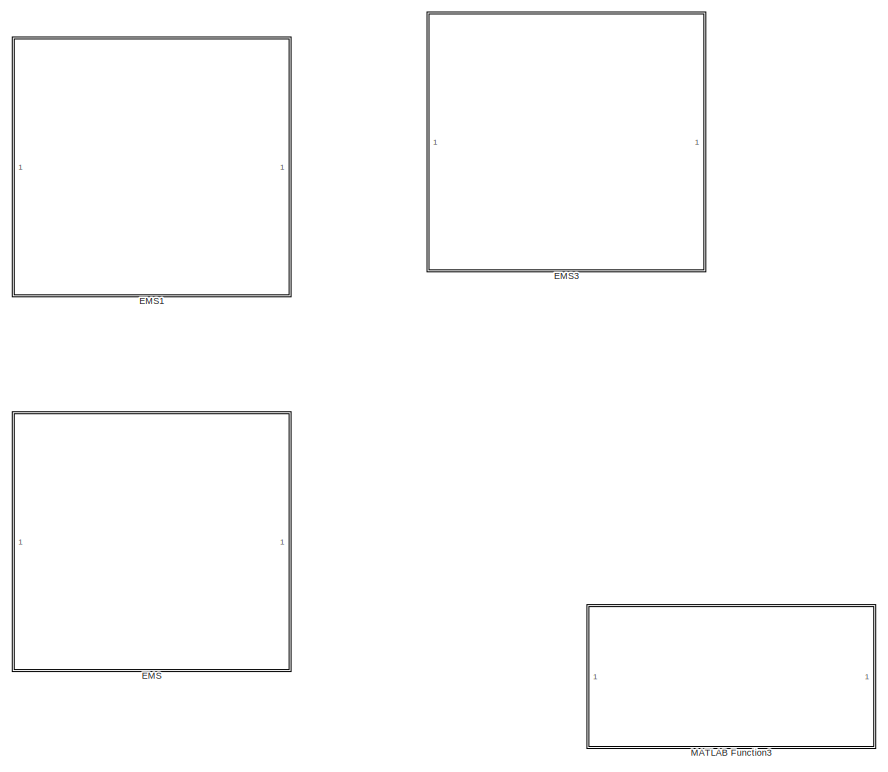
[diagram: root canvas - part 1/6, top left region]
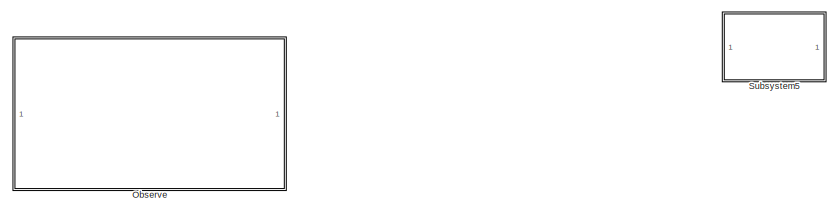
[diagram: root canvas - part 2/6, central region]
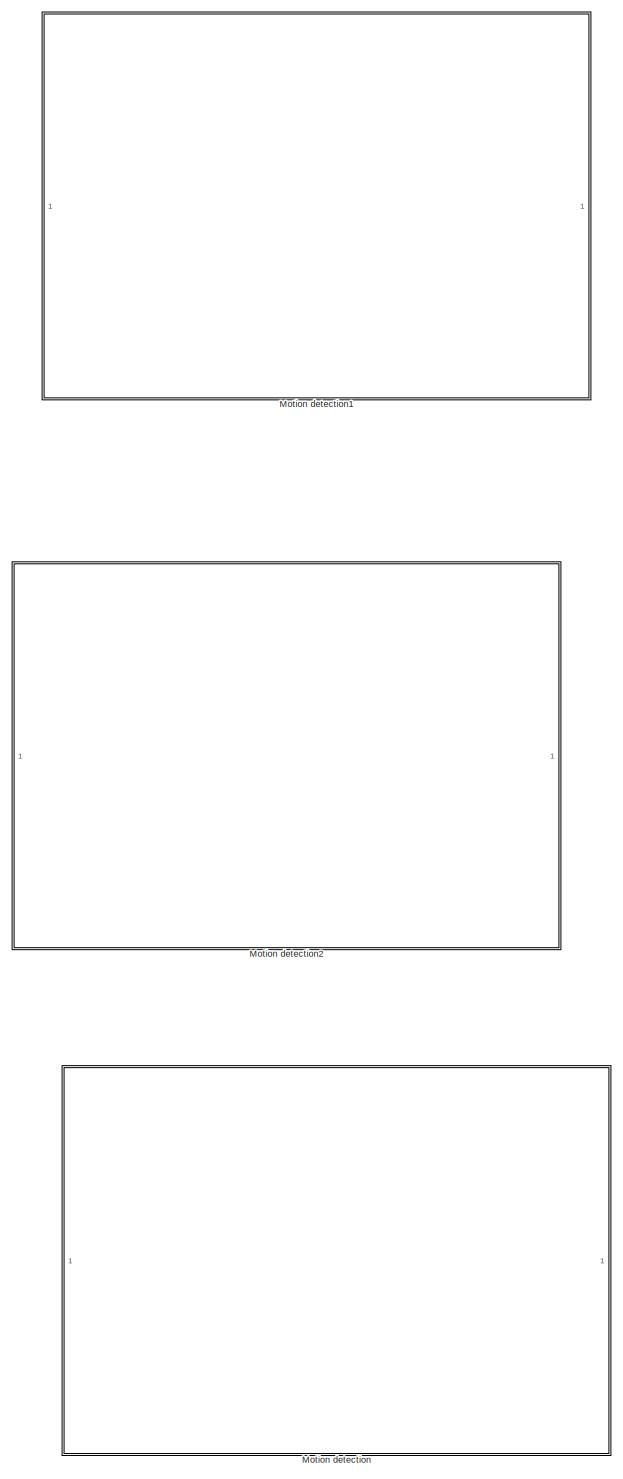
[diagram: root canvas - part 3/6, bottom left region]
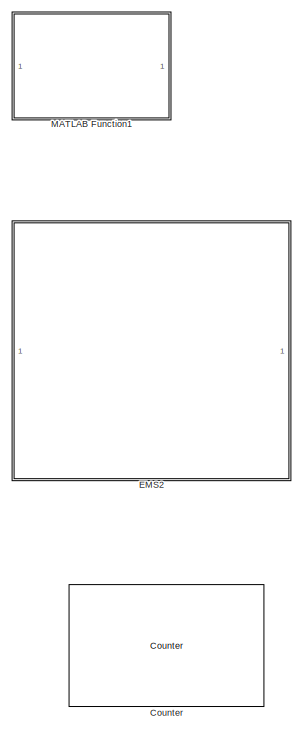
[diagram: root canvas - part 4/6, middle left region]
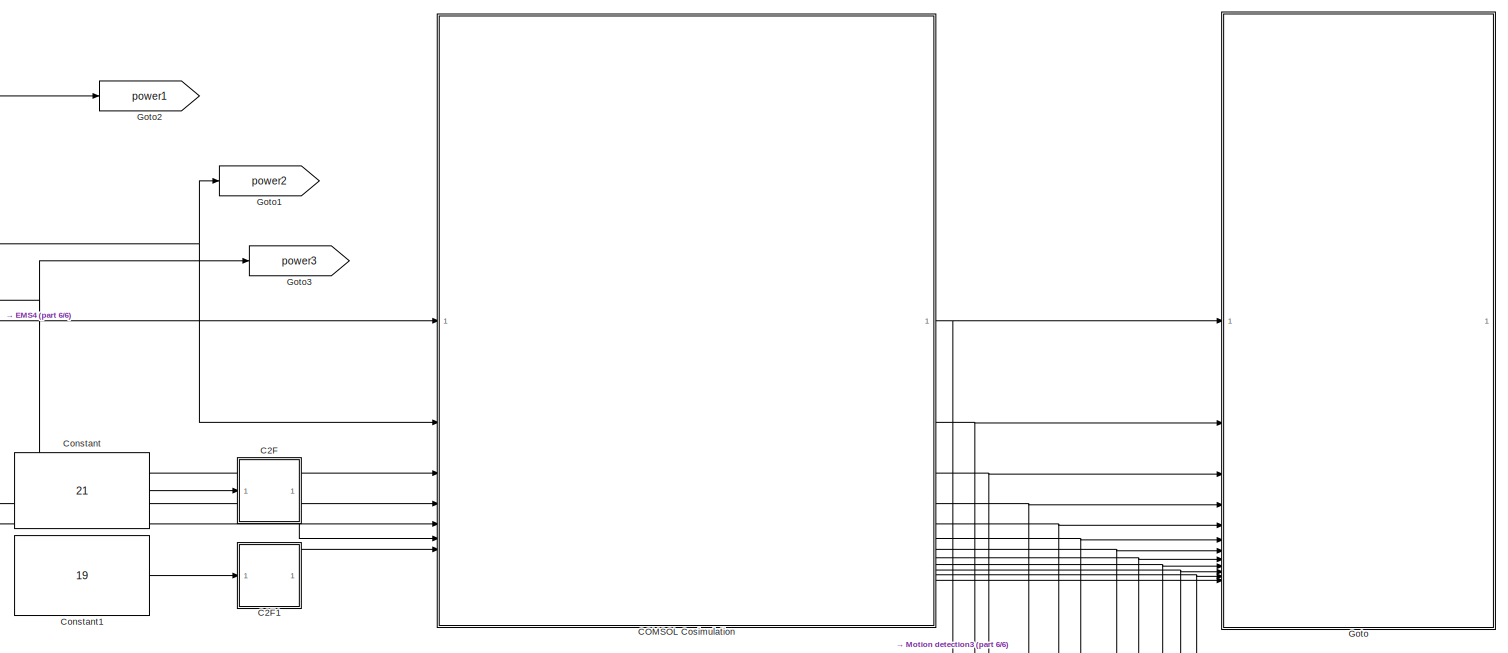
[diagram: root canvas - part 5/6, middle right region]
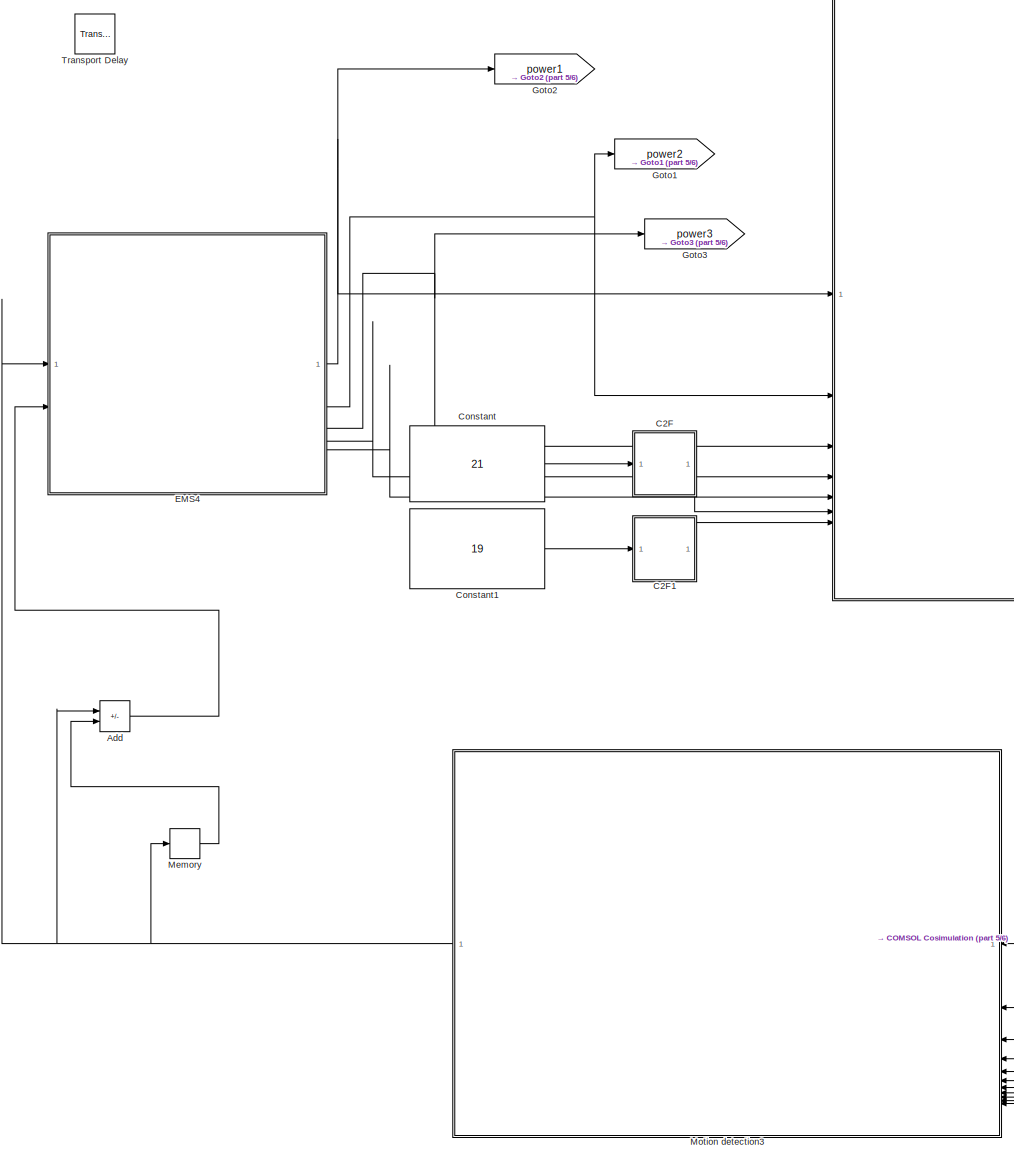
[diagram: root canvas - part 6/6, central region]
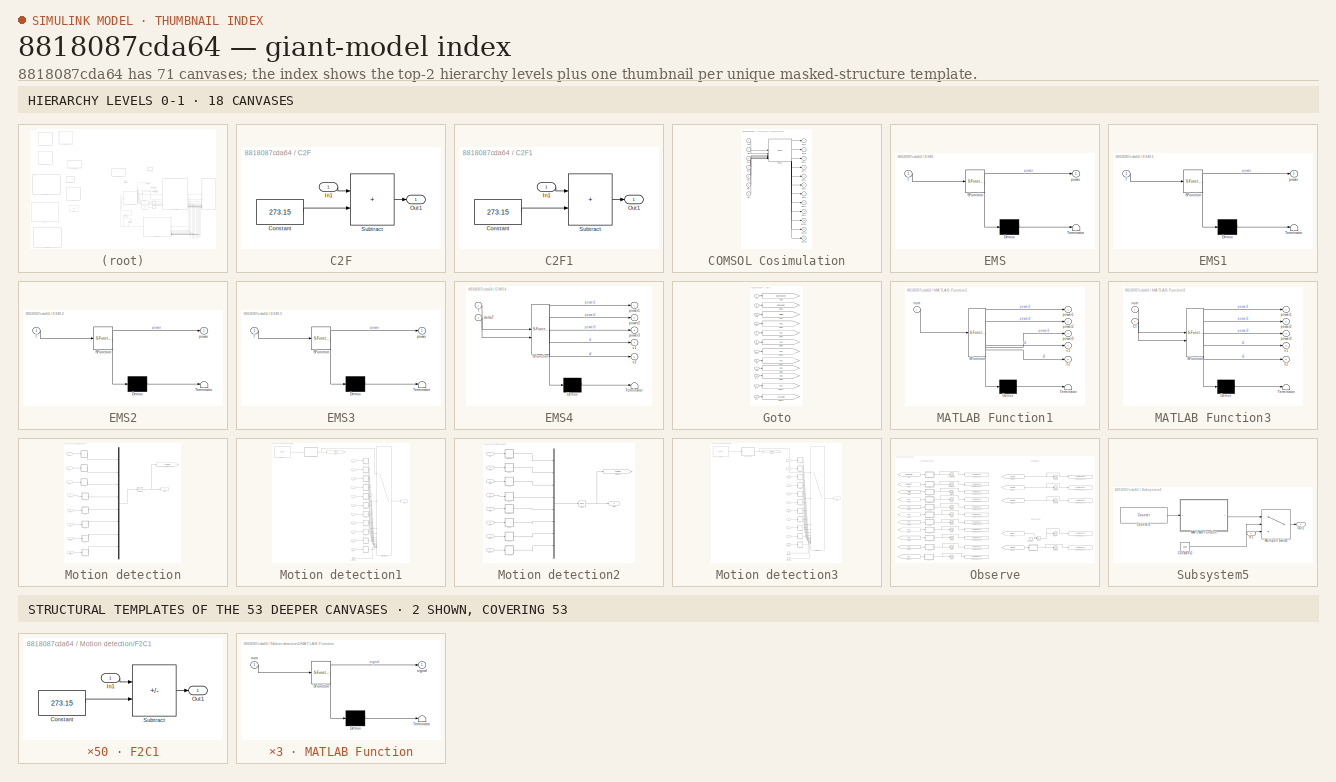
[diagram: thumbnail index - top-2 hierarchy levels (18 canvases) + 2 structural-template representatives of the remaining 53 canvases]
MODEL slx_8818087cda64
KIND model
CONFIG AbsTol = auto
CONFIG EnableMultiTasking = off
CONFIG FixedStep = 60
CONFIG MaxStep = auto
CONFIG MinStep = auto
CONFIG RelTol = 1e-3
CONFIG SampleTimeConstraint = Unconstrained
CONFIG SolverName = FixedStepAuto
CONFIG StartTime = 0
CONFIG StopTime = 3*3600
BLOCK [Sum] Add
  IconShape = rectangular
  Inputs = +-
BLOCK [SubSystem] C2F
BLOCK [Constant] C2F/Constant
  Value = 273.15
BLOCK [Inport] C2F/In1
BLOCK [Outport] C2F/Out1
BLOCK [Sum] C2F/Subtract
  IconShape = rectangular
BLOCK [SubSystem] C2F1
BLOCK [Constant] C2F1/Constant
  Value = 273.15
BLOCK [Inport] C2F1/In1
BLOCK [Outport] C2F1/Out1
BLOCK [Sum] C2F1/Subtract
  IconShape = rectangular
BLOCK [SubSystem] COMSOL Cosimulation
BLOCK [FMU] COMSOL Cosimulation/FMU
  FMUDebugLogging = on
  FMUMode = CoSimulation
  FMUName = model1201b.fmu
  MaskDisplay = if (exist([Simulink.fileGenControl('get','CacheFolder') '\slprj\_fmu\ac9248b5f738903d145a6e09f814e397\model1201b\model.png'],'file'))\n    image([Simulink.fileGenControl('get','CacheFolder') '\slprj\_fmu\ac9248b5f738903d145a6e09f814e397\model1201b\model.png']);\nelse\n    disp('demo1122bfor61.mph');\nend\nport_label('output',1,'comp1.point1');\nport_label('output',2,'comp1.point2');\nport_label('output',...<+561ch>
  MaskType = demo1122bfor61.mph [Co-Simulation, v2.0]
BLOCK [Inport] COMSOL Cosimulation/in1
BLOCK [Inport] COMSOL Cosimulation/in2
  Port = 2
BLOCK [Inport] COMSOL Cosimulation/in3
  Port = 3
BLOCK [Inport] COMSOL Cosimulation/in4
  Port = 4
BLOCK [Inport] COMSOL Cosimulation/in5
  Port = 5
BLOCK [Inport] COMSOL Cosimulation/in6
  Port = 6
BLOCK [Inport] COMSOL Cosimulation/in7
  Port = 7
BLOCK [Outport] COMSOL Cosimulation/out1
BLOCK [Outport] COMSOL Cosimulation/out10
  Port = 10
BLOCK [Outport] COMSOL Cosimulation/out11
  Port = 11
BLOCK [Outport] COMSOL Cosimulation/out12
  Port = 12
BLOCK [Outport] COMSOL Cosimulation/out2
  Port = 2
BLOCK [Outport] COMSOL Cosimulation/out3
  Port = 3
BLOCK [Outport] COMSOL Cosimulation/out4
  Port = 4
BLOCK [Outport] COMSOL Cosimulation/out5
  Port = 5
BLOCK [Outport] COMSOL Cosimulation/out6
  Port = 6
BLOCK [Outport] COMSOL Cosimulation/out7
  Port = 7
BLOCK [Outport] COMSOL Cosimulation/out8
  Port = 8
BLOCK [Outport] COMSOL Cosimulation/out9
  Port = 9
BLOCK [Constant] Constant
  Value = 21
BLOCK [Constant] Constant1
  Value = 19
BLOCK [Reference] Counter  REF=dspswit3/Counter
  Commented = on
  SourceBlock = dspswit3/Counter
  SourceType = Counter
BLOCK [SubSystem] EMS
  Commented = on
  ErrorFcn = Stateflow.Translate.translate
  PermitHierarchicalResolution = ExplicitOnly
  SFBlockType = Chart
  TreatAsAtomicUnit = on
BLOCK [Demux] EMS/ Demux 
  Outputs = 1
BLOCK [S-Function] EMS/ SFunction 
  EnableBusSupport = on
  FunctionName = sf_sfun
  PortCounts = [1 2]
  SFcnIsStateOwnerBlock = off
  SFunctionDeploymentMode = off
  Tag = Stateflow S-Function 3
BLOCK [Terminator] EMS/ Terminator 
BLOCK [Inport] EMS/T
BLOCK [Outport] EMS/power
BLOCK [SubSystem] EMS1
  Commented = on
  ErrorFcn = Stateflow.Translate.translate
  PermitHierarchicalResolution = ExplicitOnly
  SFBlockType = Chart
  TreatAsAtomicUnit = on
BLOCK [Demux] EMS1/ Demux 
  Outputs = 1
BLOCK [S-Function] EMS1/ SFunction 
  EnableBusSupport = on
  FunctionName = sf_sfun
  PortCounts = [1 2]
  SFcnIsStateOwnerBlock = off
  SFunctionDeploymentMode = off
  Tag = Stateflow S-Function 2
BLOCK [Terminator] EMS1/ Terminator 
BLOCK [Inport] EMS1/T
BLOCK [Outport] EMS1/power
BLOCK [SubSystem] EMS2
  Commented = on
  ErrorFcn = Stateflow.Translate.translate
  PermitHierarchicalResolution = ExplicitOnly
  SFBlockType = Chart
  TreatAsAtomicUnit = on
BLOCK [Demux] EMS2/ Demux 
  Outputs = 1
BLOCK [S-Function] EMS2/ SFunction 
  EnableBusSupport = on
  FunctionName = sf_sfun
  PortCounts = [1 2]
  SFcnIsStateOwnerBlock = off
  SFunctionDeploymentMode = off
  Tag = Stateflow S-Function 6
BLOCK [Terminator] EMS2/ Terminator 
BLOCK [Inport] EMS2/T
BLOCK [Outport] EMS2/power
BLOCK [SubSystem] EMS3
  Commented = on
  ErrorFcn = Stateflow.Translate.translate
  PermitHierarchicalResolution = ExplicitOnly
  SFBlockType = Chart
  TreatAsAtomicUnit = on
BLOCK [Demux] EMS3/ Demux 
  Outputs = 1
BLOCK [S-Function] EMS3/ SFunction 
  EnableBusSupport = on
  FunctionName = sf_sfun
  PortCounts = [1 2]
  SFcnIsStateOwnerBlock = off
  SFunctionDeploymentMode = off
  Tag = Stateflow S-Function 7
BLOCK [Terminator] EMS3/ Terminator 
BLOCK [Inport] EMS3/T
BLOCK [Outport] EMS3/power
BLOCK [SubSystem] EMS4
  ErrorFcn = Stateflow.Translate.translate
  PermitHierarchicalResolution = ExplicitOnly
  SFBlockType = Chart
  TreatAsAtomicUnit = on
BLOCK [Demux] EMS4/ Demux 
  Outputs = 1
BLOCK [S-Function] EMS4/ SFunction 
  EnableBusSupport = on
  FunctionName = sf_sfun
  PortCounts = [2 6]
  SFcnIsStateOwnerBlock = off
  SFunctionDeploymentMode = off
  Tag = Stateflow S-Function 9
BLOCK [Terminator] EMS4/ Terminator 
BLOCK [Inport] EMS4/T
BLOCK [Inport] EMS4/deltaT
  Port = 2
BLOCK [Outport] EMS4/power1
BLOCK [Outport] EMS4/power2
  Port = 2
BLOCK [Outport] EMS4/power3
  Port = 3
BLOCK [Outport] EMS4/v1
  Port = 4
BLOCK [Outport] EMS4/v2
  Port = 5
BLOCK [SubSystem] Goto
BLOCK [Goto] Goto/Goto
  GotoTag = nearheater
  TagVisibility = global
BLOCK [Goto] Goto/Goto1
  GotoTag = neardoor
  TagVisibility = global
BLOCK [Goto] Goto/Goto10
  GotoTag = P24
  TagVisibility = global
BLOCK [Goto] Goto/Goto12
  GotoTag = storage
  TagVisibility = global
BLOCK [Goto] Goto/Goto2
  GotoTag = ceiling
  TagVisibility = global
BLOCK [Goto] Goto/Goto3
  GotoTag = P11
  TagVisibility = global
BLOCK [Goto] Goto/Goto4
  GotoTag = P12
  TagVisibility = global
BLOCK [Goto] Goto/Goto5
  GotoTag = P13
  TagVisibility = global
BLOCK [Goto] Goto/Goto6
  GotoTag = P14
  TagVisibility = global
BLOCK [Goto] Goto/Goto7
  GotoTag = P21
  TagVisibility = global
BLOCK [Goto] Goto/Goto8
  GotoTag = P22
  TagVisibility = global
BLOCK [Goto] Goto/Goto9
  GotoTag = P23
  TagVisibility = global
BLOCK [Inport] Goto/In1
BLOCK [Inport] Goto/In10
  Port = 10
BLOCK [Inport] Goto/In11
  Port = 11
BLOCK [Inport] Goto/In12
  Port = 12
BLOCK [Inport] Goto/In2
  Port = 2
BLOCK [Inport] Goto/In3
  Port = 3
BLOCK [Inport] Goto/In4
  Port = 4
BLOCK [Inport] Goto/In5
  Port = 5
BLOCK [Inport] Goto/In6
  Port = 6
BLOCK [Inport] Goto/In7
  Port = 7
BLOCK [Inport] Goto/In8
  Port = 8
BLOCK [Inport] Goto/In9
  Port = 9
BLOCK [Goto] Goto1
  GotoTag = power2
  TagVisibility = global
BLOCK [Goto] Goto2
  GotoTag = power1
  TagVisibility = global
BLOCK [Goto] Goto3
  GotoTag = power3
  TagVisibility = global
BLOCK [SubSystem] MATLAB Function1
  Commented = on
  ErrorFcn = Stateflow.Translate.translate
  PermitHierarchicalResolution = ExplicitOnly
  SFBlockType = MATLAB Function
  TreatAsAtomicUnit = on
BLOCK [Demux] MATLAB Function1/ Demux 
  Outputs = 1
BLOCK [S-Function] MATLAB Function1/ SFunction 
  EnableBusSupport = on
  FunctionName = sf_sfun
  PortCounts = [1 6]
  SFcnIsStateOwnerBlock = off
  SFunctionDeploymentMode = off
  Tag = Stateflow S-Function 8
BLOCK [Terminator] MATLAB Function1/ Terminator 
BLOCK [Inport] MATLAB Function1/num
BLOCK [Outport] MATLAB Function1/power1
BLOCK [Outport] MATLAB Function1/power2
  Port = 2
BLOCK [Outport] MATLAB Function1/power3
  Port = 3
BLOCK [Outport] MATLAB Function1/v1
  Port = 4
BLOCK [Outport] MATLAB Function1/v2
  Port = 5
BLOCK [SubSystem] MATLAB Function3
  Commented = on
  ErrorFcn = Stateflow.Translate.translate
  PermitHierarchicalResolution = ExplicitOnly
  SFBlockType = MATLAB Function
  TreatAsAtomicUnit = on
BLOCK [Demux] MATLAB Function3/ Demux 
  Outputs = 1
BLOCK [S-Function] MATLAB Function3/ SFunction 
  EnableBusSupport = on
  FunctionName = sf_sfun
  PortCounts = [2 6]
  SFcnIsStateOwnerBlock = off
  SFunctionDeploymentMode = off
  Tag = Stateflow S-Function 4
BLOCK [Terminator] MATLAB Function3/ Terminator 
BLOCK [Inport] MATLAB Function3/CT
  Port = 2
BLOCK [Inport] MATLAB Function3/num
BLOCK [Outport] MATLAB Function3/power1
BLOCK [Outport] MATLAB Function3/power2
  Port = 2
BLOCK [Outport] MATLAB Function3/power3
  Port = 3
BLOCK [Outport] MATLAB Function3/v1
  Port = 4
BLOCK [Outport] MATLAB Function3/v2
  Port = 5
BLOCK [Memory] Memory
BLOCK [SubSystem] Motion detection
  Commented = on
  NameLocation = top
BLOCK [SubSystem] Motion detection/F2C1
BLOCK [Constant] Motion detection/F2C1/Constant
  Value = 273.15
BLOCK [Inport] Motion detection/F2C1/In1
BLOCK [Outport] Motion detection/F2C1/Out1
BLOCK [Sum] Motion detection/F2C1/Subtract
  IconShape = rectangular
  Inputs = +-
BLOCK [SubSystem] Motion detection/F2C2
BLOCK [Constant] Motion detection/F2C2/Constant
  Value = 273.15
BLOCK [Inport] Motion detection/F2C2/In1
BLOCK [Outport] Motion detection/F2C2/Out1
BLOCK [Sum] Motion detection/F2C2/Subtract
  IconShape = rectangular
  Inputs = +-
BLOCK [SubSystem] Motion detection/F2C3
BLOCK [Constant] Motion detection/F2C3/Constant
  Value = 273.15
BLOCK [Inport] Motion detection/F2C3/In1
BLOCK [Outport] Motion detection/F2C3/Out1
BLOCK [Sum] Motion detection/F2C3/Subtract
  IconShape = rectangular
  Inputs = +-
BLOCK [SubSystem] Motion detection/F2C4
BLOCK [Constant] Motion detection/F2C4/Constant
  Value = 273.15
BLOCK [Inport] Motion detection/F2C4/In1
BLOCK [Outport] Motion detection/F2C4/Out1
BLOCK [Sum] Motion detection/F2C4/Subtract
  IconShape = rectangular
  Inputs = +-
BLOCK [SubSystem] Motion detection/F2C5
BLOCK [Constant] Motion detection/F2C5/Constant
  Value = 273.15
BLOCK [Inport] Motion detection/F2C5/In1
BLOCK [Outport] Motion detection/F2C5/Out1
BLOCK [Sum] Motion detection/F2C5/Subtract
  IconShape = rectangular
  Inputs = +-
BLOCK [SubSystem] Motion detection/F2C6
BLOCK [Constant] Motion detection/F2C6/Constant
  Value = 273.15
BLOCK [Inport] Motion detection/F2C6/In1
BLOCK [Outport] Motion detection/F2C6/Out1
BLOCK [Sum] Motion detection/F2C6/Subtract
  IconShape = rectangular
  Inputs = +-
BLOCK [SubSystem] Motion detection/F2C7
BLOCK [Constant] Motion detection/F2C7/Constant
  Value = 273.15
BLOCK [Inport] Motion detection/F2C7/In1
BLOCK [Outport] Motion detection/F2C7/Out1
BLOCK [Sum] Motion detection/F2C7/Subtract
  IconShape = rectangular
  Inputs = +-
BLOCK [SubSystem] Motion detection/F2C8
BLOCK [Constant] Motion detection/F2C8/Constant
  Value = 273.15
BLOCK [Inport] Motion detection/F2C8/In1
BLOCK [Outport] Motion detection/F2C8/Out1
BLOCK [Sum] Motion detection/F2C8/Subtract
  IconShape = rectangular
  Inputs = +-
BLOCK [Goto] Motion detection/Goto10
  GotoTag = Average
  TagVisibility = global
BLOCK [Inport] Motion detection/In1
  Port = 7
BLOCK [Inport] Motion detection/In2
  Port = 8
BLOCK [Inport] Motion detection/In4
BLOCK [Inport] Motion detection/In5
  Port = 2
BLOCK [Inport] Motion detection/In6
  Port = 3
BLOCK [Inport] Motion detection/In7
  Port = 4
BLOCK [Inport] Motion detection/In8
  Port = 5
BLOCK [Inport] Motion detection/In9
  Port = 6
BLOCK [Reference] Motion detection/Mean  REF=dspstat3/Mean
  SourceBlock = dspstat3/Mean
  SourceType = Mean
  UserDataPersistent = on
BLOCK [Mux] Motion detection/Mux
  DisplayOption = bar
  Inputs = 8
BLOCK [Outport] Motion detection/Out1
BLOCK [SubSystem] Motion detection1
  Commented = on
  NameLocation = top
BLOCK [Constant] Motion detection1/Constant
  Value = 1000
BLOCK [Reference] Motion detection1/Counter  REF=dspswit3/Counter
  SourceBlock = dspswit3/Counter
  SourceType = Counter
BLOCK [SubSystem] Motion detection1/F2C
BLOCK [Constant] Motion detection1/F2C/Constant
  Value = 273.15
BLOCK [Inport] Motion detection1/F2C/In1
BLOCK [Outport] Motion detection1/F2C/Out1
BLOCK [Sum] Motion detection1/F2C/Subtract
  IconShape = rectangular
  Inputs = +-
BLOCK [SubSystem] Motion detection1/F2C1
BLOCK [Constant] Motion detection1/F2C1/Constant
  Value = 273.15
BLOCK [Inport] Motion detection1/F2C1/In1
BLOCK [Outport] Motion detection1/F2C1/Out1
BLOCK [Sum] Motion detection1/F2C1/Subtract
  IconShape = rectangular
  Inputs = +-
BLOCK [SubSystem] Motion detection1/F2C10
BLOCK [Constant] Motion detection1/F2C10/Constant
  Value = 273.15
BLOCK [Inport] Motion detection1/F2C10/In1
BLOCK [Outport] Motion detection1/F2C10/Out1
BLOCK [Sum] Motion detection1/F2C10/Subtract
  IconShape = rectangular
  Inputs = +-
BLOCK [SubSystem] Motion detection1/F2C2
BLOCK [Constant] Motion detection1/F2C2/Constant
  Value = 273.15
BLOCK [Inport] Motion detection1/F2C2/In1
BLOCK [Outport] Motion detection1/F2C2/Out1
BLOCK [Sum] Motion detection1/F2C2/Subtract
  IconShape = rectangular
  Inputs = +-
BLOCK [SubSystem] Motion detection1/F2C3
BLOCK [Constant] Motion detection1/F2C3/Constant
  Value = 273.15
BLOCK [Inport] Motion detection1/F2C3/In1
BLOCK [Outport] Motion detection1/F2C3/Out1
BLOCK [Sum] Motion detection1/F2C3/Subtract
  IconShape = rectangular
  Inputs = +-
BLOCK [SubSystem] Motion detection1/F2C4
BLOCK [Constant] Motion detection1/F2C4/Constant
  Value = 273.15
BLOCK [Inport] Motion detection1/F2C4/In1
BLOCK [Outport] Motion detection1/F2C4/Out1
BLOCK [Sum] Motion detection1/F2C4/Subtract
  IconShape = rectangular
  Inputs = +-
BLOCK [SubSystem] Motion detection1/F2C5
BLOCK [Constant] Motion detection1/F2C5/Constant
  Value = 273.15
BLOCK [Inport] Motion detection1/F2C5/In1
BLOCK [Outport] Motion detection1/F2C5/Out1
BLOCK [Sum] Motion detection1/F2C5/Subtract
  IconShape = rectangular
  Inputs = +-
BLOCK [SubSystem] Motion detection1/F2C6
BLOCK [Constant] Motion detection1/F2C6/Constant
  Value = 273.15
BLOCK [Inport] Motion detection1/F2C6/In1
BLOCK [Outport] Motion detection1/F2C6/Out1
BLOCK [Sum] Motion detection1/F2C6/Subtract
  IconShape = rectangular
  Inputs = +-
BLOCK [SubSystem] Motion detection1/F2C7
BLOCK [Constant] Motion detection1/F2C7/Constant
  Value = 273.15
BLOCK [Inport] Motion detection1/F2C7/In1
BLOCK [Outport] Motion detection1/F2C7/Out1
BLOCK [Sum] Motion detection1/F2C7/Subtract
  IconShape = rectangular
  Inputs = +-
BLOCK [SubSystem] Motion detection1/F2C8
BLOCK [Constant] Motion detection1/F2C8/Constant
  Value = 273.15
BLOCK [Inport] Motion detection1/F2C8/In1
BLOCK [Outport] Motion detection1/F2C8/Out1
BLOCK [Sum] Motion detection1/F2C8/Subtract
  IconShape = rectangular
  Inputs = +-
BLOCK [SubSystem] Motion detection1/F2C9
BLOCK [Constant] Motion detection1/F2C9/Constant
  Value = 273.15
BLOCK [Inport] Motion detection1/F2C9/In1
BLOCK [Outport] Motion detection1/F2C9/Out1
BLOCK [Sum] Motion detection1/F2C9/Subtract
  IconShape = rectangular
  Inputs = +-
BLOCK [Goto] Motion detection1/Goto10
  GotoTag = Place
  TagVisibility = global
BLOCK [Inport] Motion detection1/In1
BLOCK [Inport] Motion detection1/In10
  Port = 10
BLOCK [Inport] Motion detection1/In11
  Port = 11
BLOCK [Inport] Motion detection1/In2
  Port = 2
BLOCK [Inport] Motion detection1/In3
  Port = 3
BLOCK [Inport] Motion detection1/In4
  Port = 4
BLOCK [Inport] Motion detection1/In5
  Port = 5
BLOCK [Inport] Motion detection1/In6
  Port = 6
BLOCK [Inport] Motion detection1/In7
  Port = 7
BLOCK [Inport] Motion detection1/In8
  Port = 8
BLOCK [Inport] Motion detection1/In9
  Port = 9
BLOCK [SubSystem] Motion detection1/MATLAB Function
  ErrorFcn = Stateflow.Translate.translate
  PermitHierarchicalResolution = ExplicitOnly
  SFBlockType = MATLAB Function
  TreatAsAtomicUnit = on
BLOCK [Demux] Motion detection1/MATLAB Function/ Demux 
  Outputs = 1
BLOCK [S-Function] Motion detection1/MATLAB Function/ SFunction 
  EnableBusSupport = on
  FunctionName = sf_sfun
  PortCounts = [1 2]
  SFcnIsStateOwnerBlock = off
  SFunctionDeploymentMode = off
  Tag = Stateflow S-Function 1
BLOCK [Terminator] Motion detection1/MATLAB Function/ Terminator 
BLOCK [Inport] Motion detection1/MATLAB Function/num
BLOCK [Outport] Motion detection1/MATLAB Function/signal
BLOCK [MultiPortSwitch] Motion detection1/Multiport Switch
  InputSameDT = off
  Inputs = 12
  SaturateOnIntegerOverflow = off
BLOCK [Outport] Motion detection1/Out1
BLOCK [SubSystem] Motion detection2
  Commented = on
  NameLocation = top
BLOCK [SubSystem] Motion detection2/F2C10
BLOCK [Constant] Motion detection2/F2C10/Constant
  Value = 273.15
BLOCK [Inport] Motion detection2/F2C10/In1
BLOCK [Outport] Motion detection2/F2C10/Out1
BLOCK [Sum] Motion detection2/F2C10/Subtract
  IconShape = rectangular
  Inputs = +-
BLOCK [SubSystem] Motion detection2/F2C3
BLOCK [Constant] Motion detection2/F2C3/Constant
  Value = 273.15
BLOCK [Inport] Motion detection2/F2C3/In1
BLOCK [Outport] Motion detection2/F2C3/Out1
BLOCK [Sum] Motion detection2/F2C3/Subtract
  IconShape = rectangular
  Inputs = +-
BLOCK [SubSystem] Motion detection2/F2C4
BLOCK [Constant] Motion detection2/F2C4/Constant
  Value = 273.15
BLOCK [Inport] Motion detection2/F2C4/In1
BLOCK [Outport] Motion detection2/F2C4/Out1
BLOCK [Sum] Motion detection2/F2C4/Subtract
  IconShape = rectangular
  Inputs = +-
BLOCK [SubSystem] Motion detection2/F2C5
BLOCK [Constant] Motion detection2/F2C5/Constant
  Value = 273.15
BLOCK [Inport] Motion detection2/F2C5/In1
BLOCK [Outport] Motion detection2/F2C5/Out1
BLOCK [Sum] Motion detection2/F2C5/Subtract
  IconShape = rectangular
  Inputs = +-
BLOCK [SubSystem] Motion detection2/F2C6
BLOCK [Constant] Motion detection2/F2C6/Constant
  Value = 273.15
BLOCK [Inport] Motion detection2/F2C6/In1
BLOCK [Outport] Motion detection2/F2C6/Out1
BLOCK [Sum] Motion detection2/F2C6/Subtract
  IconShape = rectangular
  Inputs = +-
BLOCK [SubSystem] Motion detection2/F2C7
BLOCK [Constant] Motion detection2/F2C7/Constant
  Value = 273.15
BLOCK [Inport] Motion detection2/F2C7/In1
BLOCK [Outport] Motion detection2/F2C7/Out1
BLOCK [Sum] Motion detection2/F2C7/Subtract
  IconShape = rectangular
  Inputs = +-
BLOCK [SubSystem] Motion detection2/F2C8
BLOCK [Constant] Motion detection2/F2C8/Constant
  Value = 273.15
BLOCK [Inport] Motion detection2/F2C8/In1
BLOCK [Outport] Motion detection2/F2C8/Out1
BLOCK [Sum] Motion detection2/F2C8/Subtract
  IconShape = rectangular
  Inputs = +-
BLOCK [SubSystem] Motion detection2/F2C9
BLOCK [Constant] Motion detection2/F2C9/Constant
  Value = 273.15
BLOCK [Inport] Motion detection2/F2C9/In1
BLOCK [Outport] Motion detection2/F2C9/Out1
BLOCK [Sum] Motion detection2/F2C9/Subtract
  IconShape = rectangular
  Inputs = +-
BLOCK [Goto] Motion detection2/Goto10
  GotoTag = Average
  TagVisibility = global
BLOCK [Inport] Motion detection2/In10
  Port = 7
BLOCK [Inport] Motion detection2/In11
  Port = 8
BLOCK [Inport] Motion detection2/In4
BLOCK [Inport] Motion detection2/In5
  Port = 2
BLOCK [Inport] Motion detection2/In6
  Port = 3
BLOCK [Inport] Motion detection2/In7
  Port = 4
BLOCK [Inport] Motion detection2/In8
  Port = 5
BLOCK [Inport] Motion detection2/In9
  Port = 6
BLOCK [Reference] Motion detection2/Mean  REF=dspstat3/Mean
  SourceBlock = dspstat3/Mean
  SourceType = Mean
  UserDataPersistent = on
BLOCK [Mux] Motion detection2/Mux
  DisplayOption = bar
  Inputs = 8
BLOCK [Outport] Motion detection2/Out1
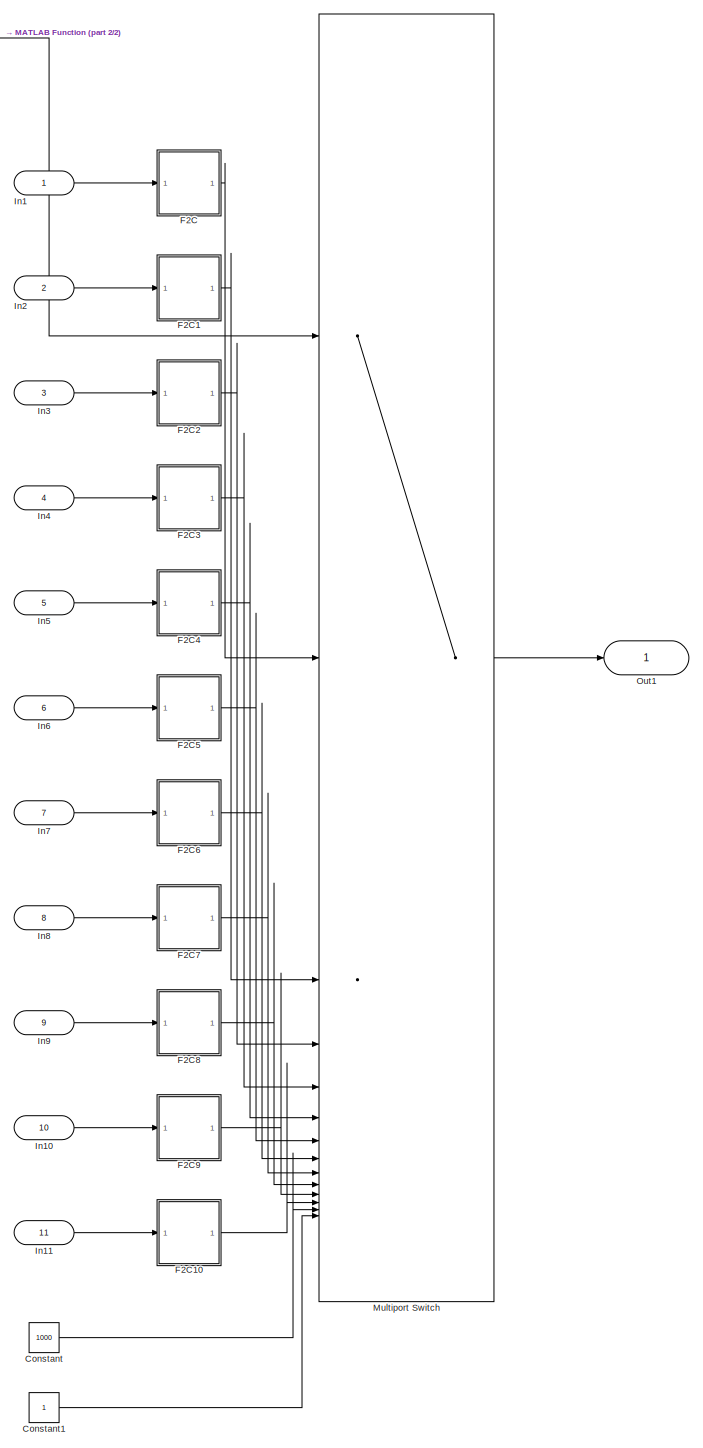
[diagram: Motion detection3 - part 1/2, right side, full height]
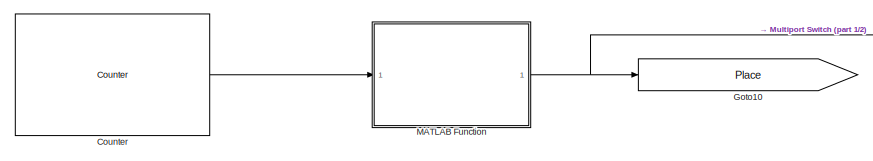
[diagram: Motion detection3 - part 2/2, top left region]
BLOCK [SubSystem] Motion detection3
  NameLocation = top
BLOCK [Constant] Motion detection3/Constant
  Value = 1000
BLOCK [Constant] Motion detection3/Constant1
BLOCK [Reference] Motion detection3/Counter  REF=dspswit3/Counter
  SourceBlock = dspswit3/Counter
  SourceType = Counter
BLOCK [SubSystem] Motion detection3/F2C
BLOCK [Constant] Motion detection3/F2C/Constant
  Value = 273.15
BLOCK [Inport] Motion detection3/F2C/In1
BLOCK [Outport] Motion detection3/F2C/Out1
BLOCK [Sum] Motion detection3/F2C/Subtract
  IconShape = rectangular
  Inputs = +-
BLOCK [SubSystem] Motion detection3/F2C1
BLOCK [Constant] Motion detection3/F2C1/Constant
  Value = 273.15
BLOCK [Inport] Motion detection3/F2C1/In1
BLOCK [Outport] Motion detection3/F2C1/Out1
BLOCK [Sum] Motion detection3/F2C1/Subtract
  IconShape = rectangular
  Inputs = +-
BLOCK [SubSystem] Motion detection3/F2C10
BLOCK [Constant] Motion detection3/F2C10/Constant
  Value = 273.15
BLOCK [Inport] Motion detection3/F2C10/In1
BLOCK [Outport] Motion detection3/F2C10/Out1
BLOCK [Sum] Motion detection3/F2C10/Subtract
  IconShape = rectangular
  Inputs = +-
BLOCK [SubSystem] Motion detection3/F2C2
BLOCK [Constant] Motion detection3/F2C2/Constant
  Value = 273.15
BLOCK [Inport] Motion detection3/F2C2/In1
BLOCK [Outport] Motion detection3/F2C2/Out1
BLOCK [Sum] Motion detection3/F2C2/Subtract
  IconShape = rectangular
  Inputs = +-
BLOCK [SubSystem] Motion detection3/F2C3
BLOCK [Constant] Motion detection3/F2C3/Constant
  Value = 273.15
BLOCK [Inport] Motion detection3/F2C3/In1
BLOCK [Outport] Motion detection3/F2C3/Out1
BLOCK [Sum] Motion detection3/F2C3/Subtract
  IconShape = rectangular
  Inputs = +-
BLOCK [SubSystem] Motion detection3/F2C4
BLOCK [Constant] Motion detection3/F2C4/Constant
  Value = 273.15
BLOCK [Inport] Motion detection3/F2C4/In1
BLOCK [Outport] Motion detection3/F2C4/Out1
BLOCK [Sum] Motion detection3/F2C4/Subtract
  IconShape = rectangular
  Inputs = +-
BLOCK [SubSystem] Motion detection3/F2C5
BLOCK [Constant] Motion detection3/F2C5/Constant
  Value = 273.15
BLOCK [Inport] Motion detection3/F2C5/In1
BLOCK [Outport] Motion detection3/F2C5/Out1
BLOCK [Sum] Motion detection3/F2C5/Subtract
  IconShape = rectangular
  Inputs = +-
BLOCK [SubSystem] Motion detection3/F2C6
BLOCK [Constant] Motion detection3/F2C6/Constant
  Value = 273.15
BLOCK [Inport] Motion detection3/F2C6/In1
BLOCK [Outport] Motion detection3/F2C6/Out1
BLOCK [Sum] Motion detection3/F2C6/Subtract
  IconShape = rectangular
  Inputs = +-
BLOCK [SubSystem] Motion detection3/F2C7
BLOCK [Constant] Motion detection3/F2C7/Constant
  Value = 273.15
BLOCK [Inport] Motion detection3/F2C7/In1
BLOCK [Outport] Motion detection3/F2C7/Out1
BLOCK [Sum] Motion detection3/F2C7/Subtract
  IconShape = rectangular
  Inputs = +-
BLOCK [SubSystem] Motion detection3/F2C8
BLOCK [Constant] Motion detection3/F2C8/Constant
  Value = 273.15
BLOCK [Inport] Motion detection3/F2C8/In1
BLOCK [Outport] Motion detection3/F2C8/Out1
BLOCK [Sum] Motion detection3/F2C8/Subtract
  IconShape = rectangular
  Inputs = +-
BLOCK [SubSystem] Motion detection3/F2C9
BLOCK [Constant] Motion detection3/F2C9/Constant
  Value = 273.15
BLOCK [Inport] Motion detection3/F2C9/In1
BLOCK [Outport] Motion detection3/F2C9/Out1
BLOCK [Sum] Motion detection3/F2C9/Subtract
  IconShape = rectangular
  Inputs = +-
BLOCK [Goto] Motion detection3/Goto10
  GotoTag = Place
  TagVisibility = global
BLOCK [Inport] Motion detection3/In1
BLOCK [Inport] Motion detection3/In10
  Port = 10
BLOCK [Inport] Motion detection3/In11
  Port = 11
BLOCK [Inport] Motion detection3/In2
  Port = 2
BLOCK [Inport] Motion detection3/In3
  Port = 3
BLOCK [Inport] Motion detection3/In4
  Port = 4
BLOCK [Inport] Motion detection3/In5
  Port = 5
BLOCK [Inport] Motion detection3/In6
  Port = 6
BLOCK [Inport] Motion detection3/In7
  Port = 7
BLOCK [Inport] Motion detection3/In8
  Port = 8
BLOCK [Inport] Motion detection3/In9
  Port = 9
BLOCK [SubSystem] Motion detection3/MATLAB Function
  ErrorFcn = Stateflow.Translate.translate
  PermitHierarchicalResolution = ExplicitOnly
  SFBlockType = MATLAB Function
  TreatAsAtomicUnit = on
BLOCK [Demux] Motion detection3/MATLAB Function/ Demux 
  Outputs = 1
BLOCK [S-Function] Motion detection3/MATLAB Function/ SFunction 
  EnableBusSupport = on
  FunctionName = sf_sfun
  PortCounts = [1 2]
  SFcnIsStateOwnerBlock = off
  SFunctionDeploymentMode = off
  Tag = Stateflow S-Function 5
BLOCK [Terminator] Motion detection3/MATLAB Function/ Terminator 
BLOCK [Inport] Motion detection3/MATLAB Function/num
BLOCK [Outport] Motion detection3/MATLAB Function/signal
BLOCK [MultiPortSwitch] Motion detection3/Multiport Switch
  InputSameDT = off
  Inputs = 13
  SaturateOnIntegerOverflow = off
BLOCK [Outport] Motion detection3/Out1
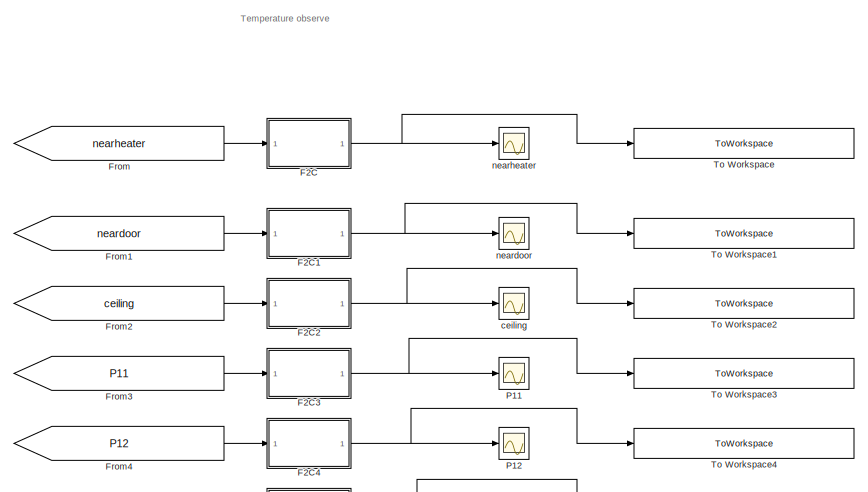
[diagram: Observe - part 1/3, top left region]
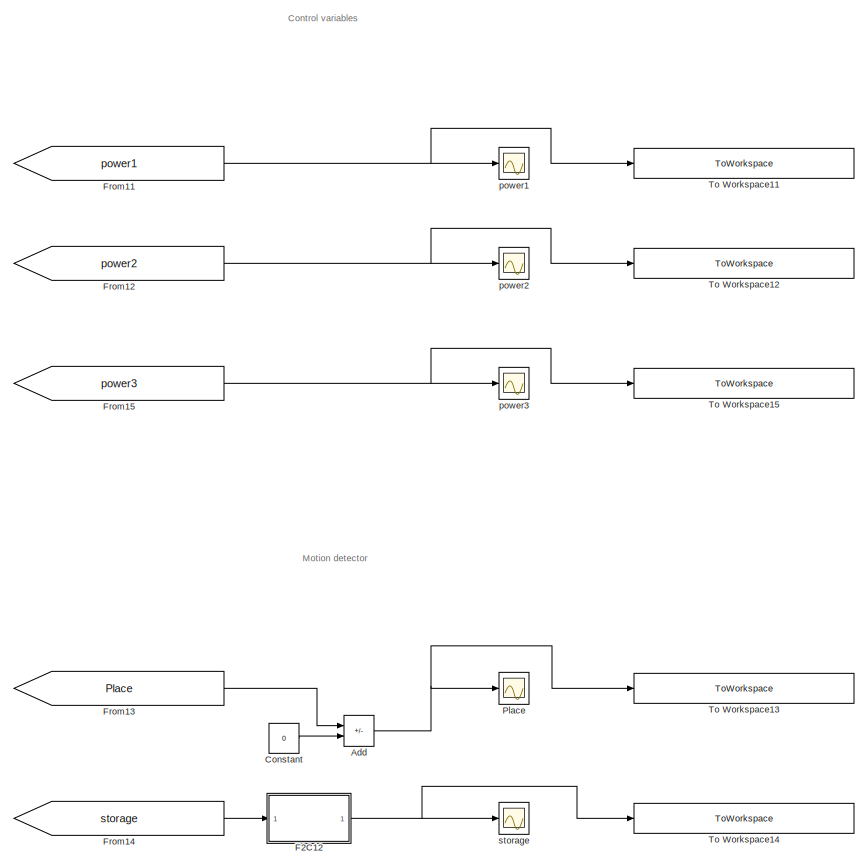
[diagram: Observe - part 2/3, right side, full height]
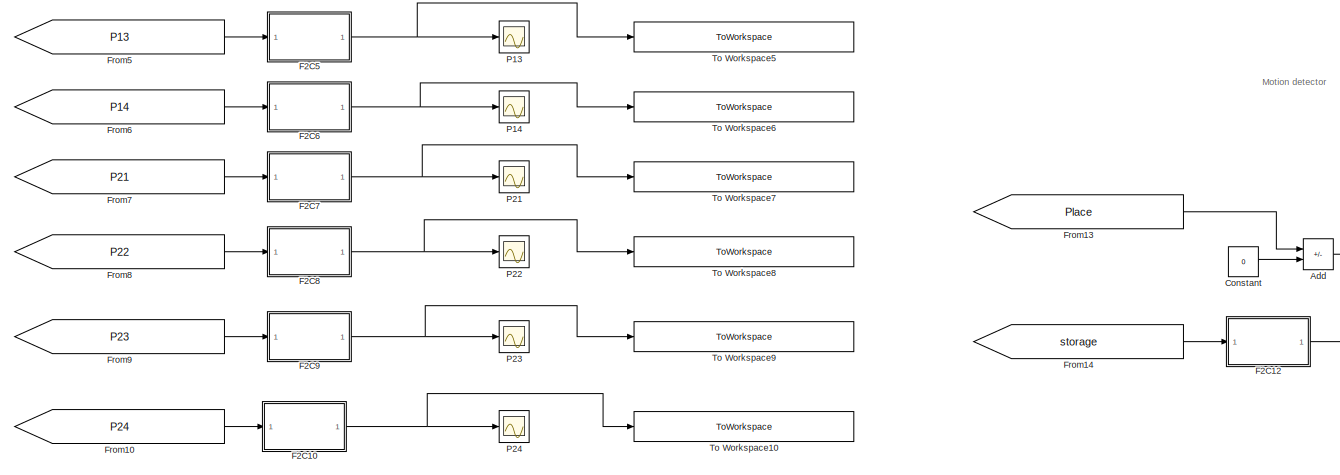
[diagram: Observe - part 3/3, full width, bottom band]
BLOCK [SubSystem] Observe
BLOCK [Sum] Observe/Add
  IconShape = rectangular
  Inputs = +-
BLOCK [Constant] Observe/Constant
  Value = 0
BLOCK [SubSystem] Observe/F2C
BLOCK [Constant] Observe/F2C/Constant
  Value = 273.15
BLOCK [Inport] Observe/F2C/In1
BLOCK [Outport] Observe/F2C/Out1
BLOCK [Sum] Observe/F2C/Subtract
  IconShape = rectangular
  Inputs = +-
BLOCK [SubSystem] Observe/F2C1
BLOCK [Constant] Observe/F2C1/Constant
  Value = 273.15
BLOCK [Inport] Observe/F2C1/In1
BLOCK [Outport] Observe/F2C1/Out1
BLOCK [Sum] Observe/F2C1/Subtract
  IconShape = rectangular
  Inputs = +-
BLOCK [SubSystem] Observe/F2C10
BLOCK [Constant] Observe/F2C10/Constant
  Value = 273.15
BLOCK [Inport] Observe/F2C10/In1
BLOCK [Outport] Observe/F2C10/Out1
BLOCK [Sum] Observe/F2C10/Subtract
  IconShape = rectangular
  Inputs = +-
BLOCK [SubSystem] Observe/F2C12
BLOCK [Constant] Observe/F2C12/Constant
  Value = 273.15
BLOCK [Inport] Observe/F2C12/In1
BLOCK [Outport] Observe/F2C12/Out1
BLOCK [Sum] Observe/F2C12/Subtract
  IconShape = rectangular
  Inputs = +-
BLOCK [SubSystem] Observe/F2C2
BLOCK [Constant] Observe/F2C2/Constant
  Value = 273.15
BLOCK [Inport] Observe/F2C2/In1
BLOCK [Outport] Observe/F2C2/Out1
BLOCK [Sum] Observe/F2C2/Subtract
  IconShape = rectangular
  Inputs = +-
BLOCK [SubSystem] Observe/F2C3
BLOCK [Constant] Observe/F2C3/Constant
  Value = 273.15
BLOCK [Inport] Observe/F2C3/In1
BLOCK [Outport] Observe/F2C3/Out1
BLOCK [Sum] Observe/F2C3/Subtract
  IconShape = rectangular
  Inputs = +-
BLOCK [SubSystem] Observe/F2C4
BLOCK [Constant] Observe/F2C4/Constant
  Value = 273.15
BLOCK [Inport] Observe/F2C4/In1
BLOCK [Outport] Observe/F2C4/Out1
BLOCK [Sum] Observe/F2C4/Subtract
  IconShape = rectangular
  Inputs = +-
BLOCK [SubSystem] Observe/F2C5
BLOCK [Constant] Observe/F2C5/Constant
  Value = 273.15
BLOCK [Inport] Observe/F2C5/In1
BLOCK [Outport] Observe/F2C5/Out1
BLOCK [Sum] Observe/F2C5/Subtract
  IconShape = rectangular
  Inputs = +-
BLOCK [SubSystem] Observe/F2C6
BLOCK [Constant] Observe/F2C6/Constant
  Value = 273.15
BLOCK [Inport] Observe/F2C6/In1
BLOCK [Outport] Observe/F2C6/Out1
BLOCK [Sum] Observe/F2C6/Subtract
  IconShape = rectangular
  Inputs = +-
BLOCK [SubSystem] Observe/F2C7
BLOCK [Constant] Observe/F2C7/Constant
  Value = 273.15
BLOCK [Inport] Observe/F2C7/In1
BLOCK [Outport] Observe/F2C7/Out1
BLOCK [Sum] Observe/F2C7/Subtract
  IconShape = rectangular
  Inputs = +-
BLOCK [SubSystem] Observe/F2C8
BLOCK [Constant] Observe/F2C8/Constant
  Value = 273.15
BLOCK [Inport] Observe/F2C8/In1
BLOCK [Outport] Observe/F2C8/Out1
BLOCK [Sum] Observe/F2C8/Subtract
  IconShape = rectangular
  Inputs = +-
BLOCK [SubSystem] Observe/F2C9
BLOCK [Constant] Observe/F2C9/Constant
  Value = 273.15
BLOCK [Inport] Observe/F2C9/In1
BLOCK [Outport] Observe/F2C9/Out1
BLOCK [Sum] Observe/F2C9/Subtract
  IconShape = rectangular
  Inputs = +-
BLOCK [From] Observe/From
  GotoTag = nearheater
  TagVisibility = global
BLOCK [From] Observe/From1
  GotoTag = neardoor
  TagVisibility = global
BLOCK [From] Observe/From10
  GotoTag = P24
  TagVisibility = global
BLOCK [From] Observe/From11
  GotoTag = power1
  TagVisibility = global
BLOCK [From] Observe/From12
  GotoTag = power2
  TagVisibility = global
BLOCK [From] Observe/From13
  GotoTag = Place
  TagVisibility = global
BLOCK [From] Observe/From14
  GotoTag = storage
  TagVisibility = global
BLOCK [From] Observe/From15
  GotoTag = power3
  TagVisibility = global
BLOCK [From] Observe/From2
  GotoTag = ceiling
  TagVisibility = global
BLOCK [From] Observe/From3
  GotoTag = P11
  TagVisibility = global
BLOCK [From] Observe/From4
  GotoTag = P12
  TagVisibility = global
BLOCK [From] Observe/From5
  GotoTag = P13
  TagVisibility = global
BLOCK [From] Observe/From6
  GotoTag = P14
  TagVisibility = global
BLOCK [From] Observe/From7
  GotoTag = P21
  TagVisibility = global
BLOCK [From] Observe/From8
  GotoTag = P22
  TagVisibility = global
BLOCK [From] Observe/From9
  GotoTag = P23
  TagVisibility = global
BLOCK [Scope] Observe/P11
  Floating = off
  NumInputPorts = 1
  ScopeSpecificationString = Simulink.scopes.TimeScopeBlockCfg('CurrentConfiguration', extmgr.ConfigurationSet(extmgr.Configuration('Core','General UI',true),extmgr.Configuration('Core','Source UI',true),extmgr.Configuration('Sources','WiredSimulink',true,'DataLoggingVariableName','ScopeData3'),extmgr.Configuration('Visuals','Time Domain',true,'SerializedDisplays',{struct('MinYLimReal','20.81799','MaxYLimReal','22.6381','YLab...<+1419ch>
BLOCK [Scope] Observe/P12
  Floating = off
  NumInputPorts = 1
  ScopeSpecificationString = Simulink.scopes.TimeScopeBlockCfg('CurrentConfiguration', extmgr.ConfigurationSet(extmgr.Configuration('Core','General UI',true),extmgr.Configuration('Core','Source UI',true),extmgr.Configuration('Sources','WiredSimulink',true,'DataLoggingVariableName','ScopeData4'),extmgr.Configuration('Visuals','Time Domain',true,'SerializedDisplays',{struct('MinYLimReal','20.76106','MaxYLimReal','23.15044','YLa...<+1398ch>
BLOCK [Scope] Observe/P13
  Floating = off
  NumInputPorts = 1
  ScopeSpecificationString = Simulink.scopes.TimeScopeBlockCfg('CurrentConfiguration', extmgr.ConfigurationSet(extmgr.Configuration('Core','General UI',true),extmgr.Configuration('Core','Source UI',true),extmgr.Configuration('Sources','WiredSimulink',true,'DataLoggingVariableName','ScopeData5'),extmgr.Configuration('Visuals','Time Domain',true,'SerializedDisplays',{struct('MinYLimReal','20.79838','MaxYLimReal','22.81457','YLa...<+1399ch>
BLOCK [Scope] Observe/P14
  Floating = off
  NumInputPorts = 1
  ScopeSpecificationString = Simulink.scopes.TimeScopeBlockCfg('CurrentConfiguration', extmgr.ConfigurationSet(extmgr.Configuration('Core','General UI',true),extmgr.Configuration('Core','Source UI',true),extmgr.Configuration('Sources','WiredSimulink',true,'DataLoggingVariableName','ScopeData6'),extmgr.Configuration('Visuals','Time Domain',true,'SerializedDisplays',{struct('MinYLimReal','20.8057','MaxYLimReal','22.74869','YLab...<+1395ch>
BLOCK [Scope] Observe/P21
  Floating = off
  NumInputPorts = 1
  ScopeSpecificationString = Simulink.scopes.TimeScopeBlockCfg('CurrentConfiguration', extmgr.ConfigurationSet(extmgr.Configuration('Core','General UI',true),extmgr.Configuration('Core','Source UI',true),extmgr.Configuration('Sources','WiredSimulink',true,'DataLoggingVariableName','ScopeData7'),extmgr.Configuration('Visuals','Time Domain',true,'SerializedDisplays',{struct('MinYLimReal','20.80667','MaxYLimReal','22.74001','YLa...<+1397ch>
BLOCK [Scope] Observe/P22
  Floating = off
  NumInputPorts = 1
  ScopeSpecificationString = Simulink.scopes.TimeScopeBlockCfg('CurrentConfiguration', extmgr.ConfigurationSet(extmgr.Configuration('Core','General UI',true),extmgr.Configuration('Core','Source UI',true),extmgr.Configuration('Sources','WiredSimulink',true,'DataLoggingVariableName','ScopeData8'),extmgr.Configuration('Visuals','Time Domain',true,'SerializedDisplays',{struct('MinYLimReal','20.80422','MaxYLimReal','22.762','YLabe...<+1390ch>
BLOCK [Scope] Observe/P23
  Floating = off
  NumInputPorts = 1
  ScopeSpecificationString = Simulink.scopes.TimeScopeBlockCfg('CurrentConfiguration', extmgr.ConfigurationSet(extmgr.Configuration('Core','General UI',true),extmgr.Configuration('Core','Source UI',true),extmgr.Configuration('Sources','WiredSimulink',true,'DataLoggingVariableName','ScopeData9'),extmgr.Configuration('Visuals','Time Domain',true,'SerializedDisplays',{struct('MinYLimReal','20.80482','MaxYLimReal','22.75659','YLa...<+1397ch>
BLOCK [Scope] Observe/P24
  Floating = off
  NumInputPorts = 1
  ScopeSpecificationString = Simulink.scopes.TimeScopeBlockCfg('CurrentConfiguration', extmgr.ConfigurationSet(extmgr.Configuration('Core','General UI',true),extmgr.Configuration('Core','Source UI',true),extmgr.Configuration('Sources','WiredSimulink',true,'DataLoggingVariableName','ScopeData10'),extmgr.Configuration('Visuals','Time Domain',true,'SerializedDisplays',{struct('MinYLimReal','20.80733','MaxYLimReal','22.73402','YL...<+1401ch>
BLOCK [Scope] Observe/Place
  Floating = off
  NumInputPorts = 1
  ScopeSpecificationString = Simulink.scopes.TimeScopeBlockCfg('CurrentConfiguration', extmgr.ConfigurationSet(extmgr.Configuration('Core','General UI',true),extmgr.Configuration('Core','Source UI',true),extmgr.Configuration('Sources','WiredSimulink',true,'DataLoggingVariableName','ScopeData1'),extmgr.Configuration('Visuals','Time Domain',true,'SerializedDisplays',{struct('MinYLimReal','0.9','MaxYLimReal','1.1','YLabelReal','...<+1408ch>
BLOCK [ToWorkspace] Observe/To Workspace
  FixptAsFi = on
  MaxDataPoints = inf
  SampleTime = -1
  VariableName = nearheater
BLOCK [ToWorkspace] Observe/To Workspace1
  FixptAsFi = on
  MaxDataPoints = inf
  SampleTime = -1
  VariableName = neardoor
BLOCK [ToWorkspace] Observe/To Workspace10
  FixptAsFi = on
  MaxDataPoints = inf
  SampleTime = -1
  VariableName = P24
BLOCK [ToWorkspace] Observe/To Workspace11
  FixptAsFi = on
  MaxDataPoints = inf
  SampleTime = -1
  VariableName = power1
BLOCK [ToWorkspace] Observe/To Workspace12
  FixptAsFi = on
  MaxDataPoints = inf
  SampleTime = -1
  VariableName = power2
BLOCK [ToWorkspace] Observe/To Workspace13
  FixptAsFi = on
  MaxDataPoints = inf
  SampleTime = -1
  VariableName = Place
BLOCK [ToWorkspace] Observe/To Workspace14
  FixptAsFi = on
  MaxDataPoints = inf
  SampleTime = -1
  VariableName = storage
BLOCK [ToWorkspace] Observe/To Workspace15
  FixptAsFi = on
  MaxDataPoints = inf
  SampleTime = -1
  VariableName = power3
BLOCK [ToWorkspace] Observe/To Workspace2
  FixptAsFi = on
  MaxDataPoints = inf
  SampleTime = -1
  VariableName = ceiling
BLOCK [ToWorkspace] Observe/To Workspace3
  FixptAsFi = on
  MaxDataPoints = inf
  SampleTime = -1
  VariableName = P11
BLOCK [ToWorkspace] Observe/To Workspace4
  FixptAsFi = on
  MaxDataPoints = inf
  SampleTime = -1
  VariableName = P12
BLOCK [ToWorkspace] Observe/To Workspace5
  FixptAsFi = on
  MaxDataPoints = inf
  SampleTime = -1
  VariableName = P13
BLOCK [ToWorkspace] Observe/To Workspace6
  FixptAsFi = on
  MaxDataPoints = inf
  SampleTime = -1
  VariableName = P14
BLOCK [ToWorkspace] Observe/To Workspace7
  FixptAsFi = on
  MaxDataPoints = inf
  SampleTime = -1
  VariableName = P21
BLOCK [ToWorkspace] Observe/To Workspace8
  FixptAsFi = on
  MaxDataPoints = inf
  SampleTime = -1
  VariableName = P22
BLOCK [ToWorkspace] Observe/To Workspace9
  FixptAsFi = on
  MaxDataPoints = inf
  SampleTime = -1
  VariableName = P23
BLOCK [Scope] Observe/ceiling
  Floating = off
  NumInputPorts = 1
  ScopeSpecificationString = Simulink.scopes.TimeScopeBlockCfg('CurrentConfiguration', extmgr.ConfigurationSet(extmgr.Configuration('Core','General UI',true),extmgr.Configuration('Core','Source UI',true),extmgr.Configuration('Sources','WiredSimulink',true,'DataLoggingVariableName','ScopeData2'),extmgr.Configuration('Visuals','Time Domain',true,'SerializedDisplays',{struct('MinYLimReal','20.56376','MaxYLimReal','24.92618','YLa...<+1424ch>
BLOCK [Scope] Observe/neardoor
  Floating = off
  NumInputPorts = 1
  ScopeSpecificationString = Simulink.scopes.TimeScopeBlockCfg('CurrentConfiguration', extmgr.ConfigurationSet(extmgr.Configuration('Core','General UI',true),extmgr.Configuration('Core','Source UI',true),extmgr.Configuration('Sources','WiredSimulink',true,'DataLoggingVariableName','ScopeData1'),extmgr.Configuration('Visuals','Time Domain',true,'SerializedDisplays',{struct('MinYLimReal','20.82955','MaxYLimReal','22.53406','YLa...<+1449ch>
BLOCK [Scope] Observe/nearheater
  Floating = off
  NumInputPorts = 1
  ScopeSpecificationString = Simulink.scopes.TimeScopeBlockCfg('CurrentConfiguration', extmgr.ConfigurationSet(extmgr.Configuration('Core','General UI',true),extmgr.Configuration('Core','Source UI',true),extmgr.Configuration('Sources','WiredSimulink',true),extmgr.Configuration('Visuals','Time Domain',true,'SerializedDisplays',{struct('MinYLimReal','20.74496','MaxYLimReal','23.29536','YLabelReal','','MinYLimMag','20.74496','Ma...<+1408ch>
BLOCK [Scope] Observe/power1
  Floating = off
  NumInputPorts = 1
  ScopeSpecificationString = Simulink.scopes.TimeScopeBlockCfg('CurrentConfiguration', extmgr.ConfigurationSet(extmgr.Configuration('Core','General UI',true),extmgr.Configuration('Core','Source UI',true),extmgr.Configuration('Sources','WiredSimulink',true,'DataLoggingVariableName','ScopeData1'),extmgr.Configuration('Visuals','Time Domain',true,'SerializedDisplays',{struct('MinYLimReal','-125.00000','MaxYLimReal','1125.00000',...<+1484ch>
BLOCK [Scope] Observe/power2
  Floating = off
  NumInputPorts = 1
  ScopeSpecificationString = Simulink.scopes.TimeScopeBlockCfg('CurrentConfiguration', extmgr.ConfigurationSet(extmgr.Configuration('Core','General UI',true),extmgr.Configuration('Core','Source UI',true),extmgr.Configuration('Sources','WiredSimulink',true,'DataLoggingVariableName','ScopeData1'),extmgr.Configuration('Visuals','Time Domain',true,'SerializedDisplays',{struct('MinYLimReal','-125.00000','MaxYLimReal','1125.00000',...<+1484ch>
BLOCK [Scope] Observe/power3
  Floating = off
  NumInputPorts = 1
  ScopeSpecificationString = Simulink.scopes.TimeScopeBlockCfg('CurrentConfiguration', extmgr.ConfigurationSet(extmgr.Configuration('Core','General UI',true),extmgr.Configuration('Core','Source UI',true),extmgr.Configuration('Sources','WiredSimulink',true,'DataLoggingVariableName','ScopeData2'),extmgr.Configuration('Visuals','Time Domain',true,'SerializedDisplays',{struct('MinYLimReal','-125.00000','MaxYLimReal','1125.00000',...<+1483ch>
BLOCK [Scope] Observe/storage
  Floating = off
  NumInputPorts = 1
  ScopeSpecificationString = Simulink.scopes.TimeScopeBlockCfg('CurrentConfiguration', extmgr.ConfigurationSet(extmgr.Configuration('Core','General UI',true),extmgr.Configuration('Core','Source UI',true),extmgr.Configuration('Sources','WiredSimulink',true,'DataLoggingVariableName','ScopeData1'),extmgr.Configuration('Visuals','Time Domain',true,'SerializedDisplays',{struct('MinYLimReal','13.17918','MaxYLimReal','91.38735','YLa...<+1470ch>
BLOCK [SubSystem] Subsystem5
  Commented = on
BLOCK [Constant] Subsystem5/Constant2
  Value = 1000
BLOCK [Reference] Subsystem5/Counter1  REF=dspswit3/Counter
  SourceBlock = dspswit3/Counter
  SourceType = Counter
BLOCK [Inport] Subsystem5/In1
BLOCK [SubSystem] Subsystem5/MATLAB Function
  ErrorFcn = Stateflow.Translate.translate
  PermitHierarchicalResolution = ExplicitOnly
  SFBlockType = MATLAB Function
  TreatAsAtomicUnit = on
BLOCK [Demux] Subsystem5/MATLAB Function/ Demux 
  Outputs = 1
BLOCK [S-Function] Subsystem5/MATLAB Function/ SFunction 
  EnableBusSupport = on
  FunctionName = sf_sfun
  PortCounts = [1 2]
  SFcnIsStateOwnerBlock = off
  SFunctionDeploymentMode = off
  Tag = Stateflow S-Function 15
BLOCK [Terminator] Subsystem5/MATLAB Function/ Terminator 
BLOCK [Inport] Subsystem5/MATLAB Function/num
BLOCK [Outport] Subsystem5/MATLAB Function/signal
BLOCK [MultiPortSwitch] Subsystem5/Multiport Switch
  InputSameDT = off
  Inputs = 2
  SaturateOnIntegerOverflow = off
BLOCK [Outport] Subsystem5/Out1
BLOCK [TransportDelay] Transport Delay
  Commented = on
ANNOTATION Observe: Control variables
ANNOTATION Observe: Motion detector
ANNOTATION Observe: Temperature observe
LINE Add:1 -> EMS4:2
LINE C2F/Constant:1 -> C2F/Subtract:2
LINE C2F/In1:1 -> C2F/Subtract:1
LINE C2F/Subtract:1 -> C2F/Out1:1
LINE C2F1/Constant:1 -> C2F1/Subtract:2
LINE C2F1/In1:1 -> C2F1/Subtract:1
LINE C2F1/Subtract:1 -> C2F1/Out1:1
LINE C2F1:1 -> COMSOL Cosimulation:7
LINE C2F:1 -> COMSOL Cosimulation:6
LINE COMSOL Cosimulation/FMU:1 -> COMSOL Cosimulation/out1:1
LINE COMSOL Cosimulation/FMU:10 -> COMSOL Cosimulation/out10:1
LINE COMSOL Cosimulation/FMU:11 -> COMSOL Cosimulation/out11:1
LINE COMSOL Cosimulation/FMU:12 -> COMSOL Cosimulation/out12:1
LINE COMSOL Cosimulation/FMU:2 -> COMSOL Cosimulation/out2:1
LINE COMSOL Cosimulation/FMU:3 -> COMSOL Cosimulation/out3:1
LINE COMSOL Cosimulation/FMU:4 -> COMSOL Cosimulation/out4:1
LINE COMSOL Cosimulation/FMU:5 -> COMSOL Cosimulation/out5:1
LINE COMSOL Cosimulation/FMU:6 -> COMSOL Cosimulation/out6:1
LINE COMSOL Cosimulation/FMU:7 -> COMSOL Cosimulation/out7:1
LINE COMSOL Cosimulation/FMU:8 -> COMSOL Cosimulation/out8:1
LINE COMSOL Cosimulation/FMU:9 -> COMSOL Cosimulation/out9:1
LINE COMSOL Cosimulation/in1:1 -> COMSOL Cosimulation/FMU:1
LINE COMSOL Cosimulation/in2:1 -> COMSOL Cosimulation/FMU:2
LINE COMSOL Cosimulation/in3:1 -> COMSOL Cosimulation/FMU:3
LINE COMSOL Cosimulation/in4:1 -> COMSOL Cosimulation/FMU:4
LINE COMSOL Cosimulation/in5:1 -> COMSOL Cosimulation/FMU:5
LINE COMSOL Cosimulation/in6:1 -> COMSOL Cosimulation/FMU:6
LINE COMSOL Cosimulation/in7:1 -> COMSOL Cosimulation/FMU:7
NET COMSOL Cosimulation:1 -> Goto:1, Motion detection3:1
NET COMSOL Cosimulation:10 -> Goto:10, Motion detection3:10
NET COMSOL Cosimulation:11 -> Goto:11, Motion detection3:11
LINE COMSOL Cosimulation:12 -> Goto:12
NET COMSOL Cosimulation:2 -> Goto:2, Motion detection3:2
NET COMSOL Cosimulation:3 -> Goto:3, Motion detection3:3
NET COMSOL Cosimulation:4 -> Goto:4, Motion detection3:4
NET COMSOL Cosimulation:5 -> Goto:5, Motion detection3:5
NET COMSOL Cosimulation:6 -> Goto:6, Motion detection3:6
NET COMSOL Cosimulation:7 -> Goto:7, Motion detection3:7
NET COMSOL Cosimulation:8 -> Goto:8, Motion detection3:8
NET COMSOL Cosimulation:9 -> Goto:9, Motion detection3:9
LINE Constant1:1 -> C2F1:1
LINE Constant:1 -> C2F:1
NET EMS4:1 -> COMSOL Cosimulation:1, Goto2:1
NET EMS4:2 -> COMSOL Cosimulation:2, Goto1:1
NET EMS4:3 -> COMSOL Cosimulation:3, Goto3:1
LINE EMS4:4 -> COMSOL Cosimulation:4
LINE EMS4:5 -> COMSOL Cosimulation:5
LINE Goto/In10:1 -> Goto/Goto9:1
LINE Goto/In11:1 -> Goto/Goto10:1
LINE Goto/In12:1 -> Goto/Goto12:1
LINE Goto/In1:1 -> Goto/Goto:1
LINE Goto/In2:1 -> Goto/Goto1:1
LINE Goto/In3:1 -> Goto/Goto2:1
LINE Goto/In4:1 -> Goto/Goto3:1
LINE Goto/In5:1 -> Goto/Goto4:1
LINE Goto/In6:1 -> Goto/Goto5:1
LINE Goto/In7:1 -> Goto/Goto6:1
LINE Goto/In8:1 -> Goto/Goto7:1
LINE Goto/In9:1 -> Goto/Goto8:1
LINE Memory:1 -> Add:2
LINE Motion detection/F2C1/Constant:1 -> Motion detection/F2C1/Subtract:2
LINE Motion detection/F2C1/In1:1 -> Motion detection/F2C1/Subtract:1
LINE Motion detection/F2C1/Subtract:1 -> Motion detection/F2C1/Out1:1
LINE Motion detection/F2C1:1 -> Motion detection/Mux:7
LINE Motion detection/F2C2/Constant:1 -> Motion detection/F2C2/Subtract:2
LINE Motion detection/F2C2/In1:1 -> Motion detection/F2C2/Subtract:1
LINE Motion detection/F2C2/Subtract:1 -> Motion detection/F2C2/Out1:1
LINE Motion detection/F2C2:1 -> Motion detection/Mux:8
LINE Motion detection/F2C3/Constant:1 -> Motion detection/F2C3/Subtract:2
LINE Motion detection/F2C3/In1:1 -> Motion detection/F2C3/Subtract:1
LINE Motion detection/F2C3/Subtract:1 -> Motion detection/F2C3/Out1:1
LINE Motion detection/F2C3:1 -> Motion detection/Mux:1
LINE Motion detection/F2C4/Constant:1 -> Motion detection/F2C4/Subtract:2
LINE Motion detection/F2C4/In1:1 -> Motion detection/F2C4/Subtract:1
LINE Motion detection/F2C4/Subtract:1 -> Motion detection/F2C4/Out1:1
LINE Motion detection/F2C4:1 -> Motion detection/Mux:2
LINE Motion detection/F2C5/Constant:1 -> Motion detection/F2C5/Subtract:2
LINE Motion detection/F2C5/In1:1 -> Motion detection/F2C5/Subtract:1
LINE Motion detection/F2C5/Subtract:1 -> Motion detection/F2C5/Out1:1
LINE Motion detection/F2C5:1 -> Motion detection/Mux:3
LINE Motion detection/F2C6/Constant:1 -> Motion detection/F2C6/Subtract:2
LINE Motion detection/F2C6/In1:1 -> Motion detection/F2C6/Subtract:1
LINE Motion detection/F2C6/Subtract:1 -> Motion detection/F2C6/Out1:1
LINE Motion detection/F2C6:1 -> Motion detection/Mux:4
LINE Motion detection/F2C7/Constant:1 -> Motion detection/F2C7/Subtract:2
LINE Motion detection/F2C7/In1:1 -> Motion detection/F2C7/Subtract:1
LINE Motion detection/F2C7/Subtract:1 -> Motion detection/F2C7/Out1:1
LINE Motion detection/F2C7:1 -> Motion detection/Mux:5
LINE Motion detection/F2C8/Constant:1 -> Motion detection/F2C8/Subtract:2
LINE Motion detection/F2C8/In1:1 -> Motion detection/F2C8/Subtract:1
LINE Motion detection/F2C8/Subtract:1 -> Motion detection/F2C8/Out1:1
LINE Motion detection/F2C8:1 -> Motion detection/Mux:6
LINE Motion detection/In1:1 -> Motion detection/F2C1:1
LINE Motion detection/In2:1 -> Motion detection/F2C2:1
LINE Motion detection/In4:1 -> Motion detection/F2C3:1
LINE Motion detection/In5:1 -> Motion detection/F2C4:1
LINE Motion detection/In6:1 -> Motion detection/F2C5:1
LINE Motion detection/In7:1 -> Motion detection/F2C6:1
LINE Motion detection/In8:1 -> Motion detection/F2C7:1
LINE Motion detection/In9:1 -> Motion detection/F2C8:1
NET Motion detection/Mean:1 -> Motion detection/Goto10:1, Motion detection/Out1:1
LINE Motion detection/Mux:1 -> Motion detection/Mean:1
LINE Motion detection1/Constant:1 -> Motion detection1/Multiport Switch:13
LINE Motion detection1/Counter:1 -> Motion detection1/MATLAB Function:1
LINE Motion detection1/F2C/Constant:1 -> Motion detection1/F2C/Subtract:2
LINE Motion detection1/F2C/In1:1 -> Motion detection1/F2C/Subtract:1
LINE Motion detection1/F2C/Subtract:1 -> Motion detection1/F2C/Out1:1
LINE Motion detection1/F2C1/Constant:1 -> Motion detection1/F2C1/Subtract:2
LINE Motion detection1/F2C1/In1:1 -> Motion detection1/F2C1/Subtract:1
LINE Motion detection1/F2C1/Subtract:1 -> Motion detection1/F2C1/Out1:1
LINE Motion detection1/F2C10/Constant:1 -> Motion detection1/F2C10/Subtract:2
LINE Motion detection1/F2C10/In1:1 -> Motion detection1/F2C10/Subtract:1
LINE Motion detection1/F2C10/Subtract:1 -> Motion detection1/F2C10/Out1:1
LINE Motion detection1/F2C10:1 -> Motion detection1/Multiport Switch:12
LINE Motion detection1/F2C1:1 -> Motion detection1/Multiport Switch:3
LINE Motion detection1/F2C2/Constant:1 -> Motion detection1/F2C2/Subtract:2
LINE Motion detection1/F2C2/In1:1 -> Motion detection1/F2C2/Subtract:1
LINE Motion detection1/F2C2/Subtract:1 -> Motion detection1/F2C2/Out1:1
LINE Motion detection1/F2C2:1 -> Motion detection1/Multiport Switch:4
LINE Motion detection1/F2C3/Constant:1 -> Motion detection1/F2C3/Subtract:2
LINE Motion detection1/F2C3/In1:1 -> Motion detection1/F2C3/Subtract:1
LINE Motion detection1/F2C3/Subtract:1 -> Motion detection1/F2C3/Out1:1
LINE Motion detection1/F2C3:1 -> Motion detection1/Multiport Switch:5
LINE Motion detection1/F2C4/Constant:1 -> Motion detection1/F2C4/Subtract:2
LINE Motion detection1/F2C4/In1:1 -> Motion detection1/F2C4/Subtract:1
LINE Motion detection1/F2C4/Subtract:1 -> Motion detection1/F2C4/Out1:1
LINE Motion detection1/F2C4:1 -> Motion detection1/Multiport Switch:6
LINE Motion detection1/F2C5/Constant:1 -> Motion detection1/F2C5/Subtract:2
LINE Motion detection1/F2C5/In1:1 -> Motion detection1/F2C5/Subtract:1
LINE Motion detection1/F2C5/Subtract:1 -> Motion detection1/F2C5/Out1:1
LINE Motion detection1/F2C5:1 -> Motion detection1/Multiport Switch:7
LINE Motion detection1/F2C6/Constant:1 -> Motion detection1/F2C6/Subtract:2
LINE Motion detection1/F2C6/In1:1 -> Motion detection1/F2C6/Subtract:1
LINE Motion detection1/F2C6/Subtract:1 -> Motion detection1/F2C6/Out1:1
LINE Motion detection1/F2C6:1 -> Motion detection1/Multiport Switch:8
LINE Motion detection1/F2C7/Constant:1 -> Motion detection1/F2C7/Subtract:2
LINE Motion detection1/F2C7/In1:1 -> Motion detection1/F2C7/Subtract:1
LINE Motion detection1/F2C7/Subtract:1 -> Motion detection1/F2C7/Out1:1
LINE Motion detection1/F2C7:1 -> Motion detection1/Multiport Switch:9
LINE Motion detection1/F2C8/Constant:1 -> Motion detection1/F2C8/Subtract:2
LINE Motion detection1/F2C8/In1:1 -> Motion detection1/F2C8/Subtract:1
LINE Motion detection1/F2C8/Subtract:1 -> Motion detection1/F2C8/Out1:1
LINE Motion detection1/F2C8:1 -> Motion detection1/Multiport Switch:10
LINE Motion detection1/F2C9/Constant:1 -> Motion detection1/F2C9/Subtract:2
LINE Motion detection1/F2C9/In1:1 -> Motion detection1/F2C9/Subtract:1
LINE Motion detection1/F2C9/Subtract:1 -> Motion detection1/F2C9/Out1:1
LINE Motion detection1/F2C9:1 -> Motion detection1/Multiport Switch:11
LINE Motion detection1/F2C:1 -> Motion detection1/Multiport Switch:2
LINE Motion detection1/In10:1 -> Motion detection1/F2C9:1
LINE Motion detection1/In11:1 -> Motion detection1/F2C10:1
LINE Motion detection1/In1:1 -> Motion detection1/F2C:1
LINE Motion detection1/In2:1 -> Motion detection1/F2C1:1
LINE Motion detection1/In3:1 -> Motion detection1/F2C2:1
LINE Motion detection1/In4:1 -> Motion detection1/F2C3:1
LINE Motion detection1/In5:1 -> Motion detection1/F2C4:1
LINE Motion detection1/In6:1 -> Motion detection1/F2C5:1
LINE Motion detection1/In7:1 -> Motion detection1/F2C6:1
LINE Motion detection1/In8:1 -> Motion detection1/F2C7:1
LINE Motion detection1/In9:1 -> Motion detection1/F2C8:1
NET Motion detection1/MATLAB Function:1 -> Motion detection1/Goto10:1, Motion detection1/Multiport Switch:1
LINE Motion detection1/Multiport Switch:1 -> Motion detection1/Out1:1
LINE Motion detection2/F2C10/Constant:1 -> Motion detection2/F2C10/Subtract:2
LINE Motion detection2/F2C10/In1:1 -> Motion detection2/F2C10/Subtract:1
LINE Motion detection2/F2C10/Subtract:1 -> Motion detection2/F2C10/Out1:1
LINE Motion detection2/F2C10:1 -> Motion detection2/Mux:8
LINE Motion detection2/F2C3/Constant:1 -> Motion detection2/F2C3/Subtract:2
LINE Motion detection2/F2C3/In1:1 -> Motion detection2/F2C3/Subtract:1
LINE Motion detection2/F2C3/Subtract:1 -> Motion detection2/F2C3/Out1:1
LINE Motion detection2/F2C3:1 -> Motion detection2/Mux:1
LINE Motion detection2/F2C4/Constant:1 -> Motion detection2/F2C4/Subtract:2
LINE Motion detection2/F2C4/In1:1 -> Motion detection2/F2C4/Subtract:1
LINE Motion detection2/F2C4/Subtract:1 -> Motion detection2/F2C4/Out1:1
LINE Motion detection2/F2C4:1 -> Motion detection2/Mux:2
LINE Motion detection2/F2C5/Constant:1 -> Motion detection2/F2C5/Subtract:2
LINE Motion detection2/F2C5/In1:1 -> Motion detection2/F2C5/Subtract:1
LINE Motion detection2/F2C5/Subtract:1 -> Motion detection2/F2C5/Out1:1
LINE Motion detection2/F2C5:1 -> Motion detection2/Mux:3
LINE Motion detection2/F2C6/Constant:1 -> Motion detection2/F2C6/Subtract:2
LINE Motion detection2/F2C6/In1:1 -> Motion detection2/F2C6/Subtract:1
LINE Motion detection2/F2C6/Subtract:1 -> Motion detection2/F2C6/Out1:1
LINE Motion detection2/F2C6:1 -> Motion detection2/Mux:4
LINE Motion detection2/F2C7/Constant:1 -> Motion detection2/F2C7/Subtract:2
LINE Motion detection2/F2C7/In1:1 -> Motion detection2/F2C7/Subtract:1
LINE Motion detection2/F2C7/Subtract:1 -> Motion detection2/F2C7/Out1:1
LINE Motion detection2/F2C7:1 -> Motion detection2/Mux:5
LINE Motion detection2/F2C8/Constant:1 -> Motion detection2/F2C8/Subtract:2
LINE Motion detection2/F2C8/In1:1 -> Motion detection2/F2C8/Subtract:1
LINE Motion detection2/F2C8/Subtract:1 -> Motion detection2/F2C8/Out1:1
LINE Motion detection2/F2C8:1 -> Motion detection2/Mux:6
LINE Motion detection2/F2C9/Constant:1 -> Motion detection2/F2C9/Subtract:2
LINE Motion detection2/F2C9/In1:1 -> Motion detection2/F2C9/Subtract:1
LINE Motion detection2/F2C9/Subtract:1 -> Motion detection2/F2C9/Out1:1
LINE Motion detection2/F2C9:1 -> Motion detection2/Mux:7
LINE Motion detection2/In10:1 -> Motion detection2/F2C9:1
LINE Motion detection2/In11:1 -> Motion detection2/F2C10:1
LINE Motion detection2/In4:1 -> Motion detection2/F2C3:1
LINE Motion detection2/In5:1 -> Motion detection2/F2C4:1
LINE Motion detection2/In6:1 -> Motion detection2/F2C5:1
LINE Motion detection2/In7:1 -> Motion detection2/F2C6:1
LINE Motion detection2/In8:1 -> Motion detection2/F2C7:1
LINE Motion detection2/In9:1 -> Motion detection2/F2C8:1
NET Motion detection2/Mean:1 -> Motion detection2/Goto10:1, Motion detection2/Out1:1
LINE Motion detection2/Mux:1 -> Motion detection2/Mean:1
LINE Motion detection3/Constant1:1 -> Motion detection3/Multiport Switch:14
LINE Motion detection3/Constant:1 -> Motion detection3/Multiport Switch:13
LINE Motion detection3/Counter:1 -> Motion detection3/MATLAB Function:1
LINE Motion detection3/F2C/Constant:1 -> Motion detection3/F2C/Subtract:2
LINE Motion detection3/F2C/In1:1 -> Motion detection3/F2C/Subtract:1
LINE Motion detection3/F2C/Subtract:1 -> Motion detection3/F2C/Out1:1
LINE Motion detection3/F2C1/Constant:1 -> Motion detection3/F2C1/Subtract:2
LINE Motion detection3/F2C1/In1:1 -> Motion detection3/F2C1/Subtract:1
LINE Motion detection3/F2C1/Subtract:1 -> Motion detection3/F2C1/Out1:1
LINE Motion detection3/F2C10/Constant:1 -> Motion detection3/F2C10/Subtract:2
LINE Motion detection3/F2C10/In1:1 -> Motion detection3/F2C10/Subtract:1
LINE Motion detection3/F2C10/Subtract:1 -> Motion detection3/F2C10/Out1:1
LINE Motion detection3/F2C10:1 -> Motion detection3/Multiport Switch:12
LINE Motion detection3/F2C1:1 -> Motion detection3/Multiport Switch:3
LINE Motion detection3/F2C2/Constant:1 -> Motion detection3/F2C2/Subtract:2
LINE Motion detection3/F2C2/In1:1 -> Motion detection3/F2C2/Subtract:1
LINE Motion detection3/F2C2/Subtract:1 -> Motion detection3/F2C2/Out1:1
LINE Motion detection3/F2C2:1 -> Motion detection3/Multiport Switch:4
LINE Motion detection3/F2C3/Constant:1 -> Motion detection3/F2C3/Subtract:2
LINE Motion detection3/F2C3/In1:1 -> Motion detection3/F2C3/Subtract:1
LINE Motion detection3/F2C3/Subtract:1 -> Motion detection3/F2C3/Out1:1
LINE Motion detection3/F2C3:1 -> Motion detection3/Multiport Switch:5
LINE Motion detection3/F2C4/Constant:1 -> Motion detection3/F2C4/Subtract:2
LINE Motion detection3/F2C4/In1:1 -> Motion detection3/F2C4/Subtract:1
LINE Motion detection3/F2C4/Subtract:1 -> Motion detection3/F2C4/Out1:1
LINE Motion detection3/F2C4:1 -> Motion detection3/Multiport Switch:6
LINE Motion detection3/F2C5/Constant:1 -> Motion detection3/F2C5/Subtract:2
LINE Motion detection3/F2C5/In1:1 -> Motion detection3/F2C5/Subtract:1
LINE Motion detection3/F2C5/Subtract:1 -> Motion detection3/F2C5/Out1:1
LINE Motion detection3/F2C5:1 -> Motion detection3/Multiport Switch:7
LINE Motion detection3/F2C6/Constant:1 -> Motion detection3/F2C6/Subtract:2
LINE Motion detection3/F2C6/In1:1 -> Motion detection3/F2C6/Subtract:1
LINE Motion detection3/F2C6/Subtract:1 -> Motion detection3/F2C6/Out1:1
LINE Motion detection3/F2C6:1 -> Motion detection3/Multiport Switch:8
LINE Motion detection3/F2C7/Constant:1 -> Motion detection3/F2C7/Subtract:2
LINE Motion detection3/F2C7/In1:1 -> Motion detection3/F2C7/Subtract:1
LINE Motion detection3/F2C7/Subtract:1 -> Motion detection3/F2C7/Out1:1
LINE Motion detection3/F2C7:1 -> Motion detection3/Multiport Switch:9
LINE Motion detection3/F2C8/Constant:1 -> Motion detection3/F2C8/Subtract:2
LINE Motion detection3/F2C8/In1:1 -> Motion detection3/F2C8/Subtract:1
LINE Motion detection3/F2C8/Subtract:1 -> Motion detection3/F2C8/Out1:1
LINE Motion detection3/F2C8:1 -> Motion detection3/Multiport Switch:10
LINE Motion detection3/F2C9/Constant:1 -> Motion detection3/F2C9/Subtract:2
LINE Motion detection3/F2C9/In1:1 -> Motion detection3/F2C9/Subtract:1
LINE Motion detection3/F2C9/Subtract:1 -> Motion detection3/F2C9/Out1:1
LINE Motion detection3/F2C9:1 -> Motion detection3/Multiport Switch:11
LINE Motion detection3/F2C:1 -> Motion detection3/Multiport Switch:2
LINE Motion detection3/In10:1 -> Motion detection3/F2C9:1
LINE Motion detection3/In11:1 -> Motion detection3/F2C10:1
LINE Motion detection3/In1:1 -> Motion detection3/F2C:1
LINE Motion detection3/In2:1 -> Motion detection3/F2C1:1
LINE Motion detection3/In3:1 -> Motion detection3/F2C2:1
LINE Motion detection3/In4:1 -> Motion detection3/F2C3:1
LINE Motion detection3/In5:1 -> Motion detection3/F2C4:1
LINE Motion detection3/In6:1 -> Motion detection3/F2C5:1
LINE Motion detection3/In7:1 -> Motion detection3/F2C6:1
LINE Motion detection3/In8:1 -> Motion detection3/F2C7:1
LINE Motion detection3/In9:1 -> Motion detection3/F2C8:1
NET Motion detection3/MATLAB Function:1 -> Motion detection3/Goto10:1, Motion detection3/Multiport Switch:1
LINE Motion detection3/Multiport Switch:1 -> Motion detection3/Out1:1
NET Motion detection3:1 -> Add:1, EMS4:1, Memory:1
NET Observe/Add:1 -> Observe/Place:1, Observe/To Workspace13:1
LINE Observe/Constant:1 -> Observe/Add:2
LINE Observe/F2C/Constant:1 -> Observe/F2C/Subtract:2
LINE Observe/F2C/In1:1 -> Observe/F2C/Subtract:1
LINE Observe/F2C/Subtract:1 -> Observe/F2C/Out1:1
LINE Observe/F2C1/Constant:1 -> Observe/F2C1/Subtract:2
LINE Observe/F2C1/In1:1 -> Observe/F2C1/Subtract:1
LINE Observe/F2C1/Subtract:1 -> Observe/F2C1/Out1:1
LINE Observe/F2C10/Constant:1 -> Observe/F2C10/Subtract:2
LINE Observe/F2C10/In1:1 -> Observe/F2C10/Subtract:1
LINE Observe/F2C10/Subtract:1 -> Observe/F2C10/Out1:1
NET Observe/F2C10:1 -> Observe/P24:1, Observe/To Workspace10:1
LINE Observe/F2C12/Constant:1 -> Observe/F2C12/Subtract:2
LINE Observe/F2C12/In1:1 -> Observe/F2C12/Subtract:1
LINE Observe/F2C12/Subtract:1 -> Observe/F2C12/Out1:1
NET Observe/F2C12:1 -> Observe/To Workspace14:1, Observe/storage:1
NET Observe/F2C1:1 -> Observe/To Workspace1:1, Observe/neardoor:1
LINE Observe/F2C2/Constant:1 -> Observe/F2C2/Subtract:2
LINE Observe/F2C2/In1:1 -> Observe/F2C2/Subtract:1
LINE Observe/F2C2/Subtract:1 -> Observe/F2C2/Out1:1
NET Observe/F2C2:1 -> Observe/To Workspace2:1, Observe/ceiling:1
LINE Observe/F2C3/Constant:1 -> Observe/F2C3/Subtract:2
LINE Observe/F2C3/In1:1 -> Observe/F2C3/Subtract:1
LINE Observe/F2C3/Subtract:1 -> Observe/F2C3/Out1:1
NET Observe/F2C3:1 -> Observe/P11:1, Observe/To Workspace3:1
LINE Observe/F2C4/Constant:1 -> Observe/F2C4/Subtract:2
LINE Observe/F2C4/In1:1 -> Observe/F2C4/Subtract:1
LINE Observe/F2C4/Subtract:1 -> Observe/F2C4/Out1:1
NET Observe/F2C4:1 -> Observe/P12:1, Observe/To Workspace4:1
LINE Observe/F2C5/Constant:1 -> Observe/F2C5/Subtract:2
LINE Observe/F2C5/In1:1 -> Observe/F2C5/Subtract:1
LINE Observe/F2C5/Subtract:1 -> Observe/F2C5/Out1:1
NET Observe/F2C5:1 -> Observe/P13:1, Observe/To Workspace5:1
LINE Observe/F2C6/Constant:1 -> Observe/F2C6/Subtract:2
LINE Observe/F2C6/In1:1 -> Observe/F2C6/Subtract:1
LINE Observe/F2C6/Subtract:1 -> Observe/F2C6/Out1:1
NET Observe/F2C6:1 -> Observe/P14:1, Observe/To Workspace6:1
LINE Observe/F2C7/Constant:1 -> Observe/F2C7/Subtract:2
LINE Observe/F2C7/In1:1 -> Observe/F2C7/Subtract:1
LINE Observe/F2C7/Subtract:1 -> Observe/F2C7/Out1:1
NET Observe/F2C7:1 -> Observe/P21:1, Observe/To Workspace7:1
LINE Observe/F2C8/Constant:1 -> Observe/F2C8/Subtract:2
LINE Observe/F2C8/In1:1 -> Observe/F2C8/Subtract:1
LINE Observe/F2C8/Subtract:1 -> Observe/F2C8/Out1:1
NET Observe/F2C8:1 -> Observe/P22:1, Observe/To Workspace8:1
LINE Observe/F2C9/Constant:1 -> Observe/F2C9/Subtract:2
LINE Observe/F2C9/In1:1 -> Observe/F2C9/Subtract:1
LINE Observe/F2C9/Subtract:1 -> Observe/F2C9/Out1:1
NET Observe/F2C9:1 -> Observe/P23:1, Observe/To Workspace9:1
NET Observe/F2C:1 -> Observe/To Workspace:1, Observe/nearheater:1
LINE Observe/From10:1 -> Observe/F2C10:1
NET Observe/From11:1 -> Observe/To Workspace11:1, Observe/power1:1
NET Observe/From12:1 -> Observe/To Workspace12:1, Observe/power2:1
LINE Observe/From13:1 -> Observe/Add:1
LINE Observe/From14:1 -> Observe/F2C12:1
NET Observe/From15:1 -> Observe/To Workspace15:1, Observe/power3:1
LINE Observe/From1:1 -> Observe/F2C1:1
LINE Observe/From2:1 -> Observe/F2C2:1
LINE Observe/From3:1 -> Observe/F2C3:1
LINE Observe/From4:1 -> Observe/F2C4:1
LINE Observe/From5:1 -> Observe/F2C5:1
LINE Observe/From6:1 -> Observe/F2C6:1
LINE Observe/From7:1 -> Observe/F2C7:1
LINE Observe/From8:1 -> Observe/F2C8:1
LINE Observe/From9:1 -> Observe/F2C9:1
LINE Observe/From:1 -> Observe/F2C:1
LINE Subsystem5/Constant2:1 -> Subsystem5/Multiport Switch:2
LINE Subsystem5/Counter1:1 -> Subsystem5/MATLAB Function:1
LINE Subsystem5/In1:1 -> Subsystem5/Multiport Switch:3
LINE Subsystem5/MATLAB Function:1 -> Subsystem5/Multiport Switch:1
LINE Subsystem5/Multiport Switch:1 -> Subsystem5/Out1:1
note: NET lines group one-source signal fan-out (src -> all destinations, sorted); 1:1 wires keep LINE
CHART EMS states=4 transitions=7
  STATE_LABEL 'OFF_Mode\nduring:\npower = 0;'
  STATE_LABEL 'ON_Mode'
  STATE_LABEL 'Mode1\nduring:\npower=3300;'
  STATE_LABEL 'Mode2\nduring:\npower=1100;'
  STATE_LABEL '[T>21.6]'
  STATE_LABEL 'Mode1\nduring:\npower=3300;'
  STATE_LABEL 'Mode2\nduring:\npower=1100;'
CHART MATLAB Function3 states=1 transitions=1
  STATE_LABEL 'eML_blk_kernel()'
  STATE_LABEL 'SCRIPT:\nfunction [power1,power2,power3,v1,v2] = motion(num,CT)\n    \n%     N = ceil(num/30); \n\n    deltaT = num - 23;\n    \n\n    if num < 10\n        power1 = 1000;\n        power2 = 1000;\n        power3 = 1000;\n        v1 = 0;\n        v2 = 0;\n    else\n        if deltaT <= -0.5\n            if CT <= 0.09\n                power1 = 1000;\n                power2 = 1000;\n                power3 = 1000;\n      ...<+2175ch>'
CHART Motion detection3/MATLAB Function states=1 transitions=1
  STATE_LABEL 'eML_blk_kernel()'
  STATE_LABEL 'SCRIPT:\nfunction signal = motion(num)\n    \n    N = ceil(num/30); \n    \n    if N == 1\n        signal = 1; % 5 + 3\n    elseif N == 2\n        signal = 1; % 3 + 3\n    elseif N == 3\n        signal = 1; % 2 + 3\n    elseif N == 4\n        signal = 1; % 7 + 3\n    elseif N == 5\n        signal = 1; % 6 + 3\n    elseif N == 6\n        signal = 1; % 4 + 3\n    else\n        signal = 1;\n    end\n    \nend\n    \n\n'
CHART EMS2 states=3 transitions=6
  STATE_LABEL 'OFF_Mode\nduring:\npower = 0;'
  STATE_LABEL 'ON_Mode'
  STATE_LABEL 'Mode3\nduring:\npower = 3300;'
  STATE_LABEL 'Mode3\nduring:\npower = 3300;'
CHART EMS3 states=5 transitions=8
  STATE_LABEL 'OFF_Mode\nduring:\npower = 0;'
  STATE_LABEL 'ON_Mode'
  STATE_LABEL 'Mode1\nduring:\npower = 1100;'
  STATE_LABEL 'Mode2\nduring:\npower = 2200;'
  STATE_LABEL 'Mode3\nduring:\npower = 3300;'
  STATE_LABEL '[T>23]'
  STATE_LABEL '[T>23.7]'
  STATE_LABEL 'Mode1\nduring:\npower = 1100;'
  STATE_LABEL 'Mode2\nduring:\npower = 2200;'
  STATE_LABEL 'Mode3\nduring:\npower = 3300;'
CHART MATLAB Function1 states=1 transitions=1
  STATE_LABEL 'eML_blk_kernel()'
  STATE_LABEL 'SCRIPT:\nfunction [power1,power2,power3,v1,v2] = motion(num)\n    \n    N = ceil(num/10); \n\n    if N <= 1\n        power1 = 1000;\n        power2 = 1000;\n        power3 = 1000;\n        v1 = 0;\n        v2 = 0;\n    else\n\n        if N <= 2\n         power1 = 0;\n         power2 = 0;\n         power3 = 0;\n         v1 = 3;\n         v2 = 1; \n        else\n         power1 = 0;\n         power2 = 0;\n         power3...<+201ch>'
CHART EMS4 states=11 transitions=22
  STATE_LABEL 'OFF_Mode\npower1 = 0;\npower2 = 0;\npower3 = 0;\nv1 = 0;\nv2 = 0;'
  STATE_LABEL 'ON_Mode'
  STATE_LABEL 'Mode1\n'
  STATE_LABEL 'Mode1off\npower1 = 0;\npower2 = 0;\npower3 = 0;\nv1 = 2;\nv2 = 1;'
  STATE_LABEL 'Mode1on\npower1 = 1000;\npower2 = 0;\npower3 = 0;\nv1 = 2;\nv2 = 1;'
  STATE_LABEL '[deltaT>=0.03]'
  STATE_LABEL '[deltaT<0.03]'
  STATE_LABEL 'Mode3\n'
  STATE_LABEL 'Mode3off\npower1 = 0;\npower2 = 0;\npower3 = 0;\nv1 = 2;\nv2 = 1;'
  STATE_LABEL 'Mode3on\npower1 = 1000;\npower2 = 1000;\npower3 = 1000;\nv1 = 2;\nv2 = 1;'
  STATE_LABEL '[deltaT>=0.12]'
  STATE_LABEL '[deltaT<0.12]'
  STATE_LABEL 'Mode2\n'
  STATE_LABEL 'Mode2off\npower1 = 0;\npower2 = 0;\npower3 = 0;\nv1 = 2;\nv2 = 1;'
  STATE_LABEL 'Mode2on\npower1 = 1000;\npower2 = 1000;\npower3 = 0;\nv1 = 2;\nv2 = 1;'
  STATE_LABEL '[deltaT>=0.06]'
  STATE_LABEL '[deltaT<0.06]'
  STATE_LABEL '[T<=21.5]'
  STATE_LABEL '[deltaT<0]'
  STATE_LABEL '[deltaT<=0.02]'
  STATE_LABEL '[T>22.5&deltaT>0.03]'
  STATE_LABEL '[T>22.5&deltaT>0.03]'
  STATE_LABEL '[deltaT<=0.015&deltaT>=0]'
  STATE_LABEL 'Mode1\n'
  STATE_LABEL 'Mode1off\npower1 = 0;\npower2 = 0;\npower3 = 0;\nv1 = 2;\nv2 = 1;'
  STATE_LABEL 'Mode1on\npower1 = 1000;\npower2 = 0;\npower3 = 0;\nv1 = 2;\nv2 = 1;'
  STATE_LABEL '[deltaT>=0.03]'
  STATE_LABEL '[deltaT<0.03]'
  STATE_LABEL 'Mode1off\npower1 = 0;\npower2 = 0;\npower3 = 0;\nv1 = 2;\nv2 = 1;'
  STATE_LABEL 'Mode1on\npower1 = 1000;\npower2 = 0;\npower3 = 0;\nv1 = 2;\nv2 = 1;'
  STATE_LABEL 'Mode3\n'
  STATE_LABEL 'Mode3off\npower1 = 0;\npower2 = 0;\npower3 = 0;\nv1 = 2;\nv2 = 1;'
  STATE_LABEL 'Mode3on\npower1 = 1000;\npower2 = 1000;\npower3 = 1000;\nv1 = 2;\nv2 = 1;'
  STATE_LABEL '[deltaT>=0.12]'
  STATE_LABEL '[deltaT<0.12]'
  STATE_LABEL 'Mode3off\npower1 = 0;\npower2 = 0;\npower3 = 0;\nv1 = 2;\nv2 = 1;'
  STATE_LABEL 'Mode3on\npower1 = 1000;\npower2 = 1000;\npower3 = 1000;\nv1 = 2;\nv2 = 1;'
  STATE_LABEL 'Mode2\n'
  STATE_LABEL 'Mode2off\npower1 = 0;\npower2 = 0;\npower3 = 0;\nv1 = 2;\nv2 = 1;'
  STATE_LABEL 'Mode2on\npower1 = 1000;\npower2 = 1000;\npower3 = 0;\nv1 = 2;\nv2 = 1;'
CHART Subsystem5/MATLAB Function states=1 transitions=1
  STATE_LABEL 'eML_blk_kernel()'
  STATE_LABEL 'SCRIPT:\nfunction signal = motion(num)\n    \n    N = ceil(num/30); \n    \n    if N == 1\n        signal = 1; % 6 + 3\n    else\n        signal = 2;\n    end\n    \nend\n    \n\n'
CHART Motion detection1/MATLAB Function states=1 transitions=1
  STATE_LABEL 'eML_blk_kernel()'
  STATE_LABEL 'SCRIPT:\nfunction signal = motion(num)\n    \n    N = ceil(num/30); \n    \n    if N == 1\n        signal = 6 + 3;\n    elseif N == 2\n        signal = 3 + 3;\n    elseif N == 3\n        signal = 7 + 3;\n    elseif N == 4\n        signal = 12;\n    elseif N == 5\n        signal = 8 + 3;\n    elseif N == 6\n        signal = 5 + 3;\n    elseif N == 7\n        signal = 12;\n    elseif N == 8\n        signal = 12;\n    el...<+131ch>'
CHART EMS1 states=5 transitions=10
  STATE_LABEL 'OFF_Mode\nduring:\npower = 0;'
  STATE_LABEL 'ON_Mode'
  STATE_LABEL 'Mode1\nduring:\npower = 1100;'
  STATE_LABEL 'Mode2\nduring:\npower = 2200;'
  STATE_LABEL 'Mode3\nduring:\npower = 3300;'
  STATE_LABEL '[T>=22]'
  STATE_LABEL '[T>23.5]'
  STATE_LABEL '[T>23.5]'
  STATE_LABEL 'Mode1\nduring:\npower = 1100;'
  STATE_LABEL 'Mode2\nduring:\npower = 2200;'
  STATE_LABEL 'Mode3\nduring:\npower = 3300;'
CHART  states=0 transitions=0
CHART  states=0 transitions=0
CHART  states=0 transitions=0
CHART  states=0 transitions=0
CHART  states=0 transitions=0
CHART  states=0 transitions=0
CHART  states=0 transitions=0
CHART  states=0 transitions=0
CHART  states=0 transitions=0
CHART  states=0 transitions=0
